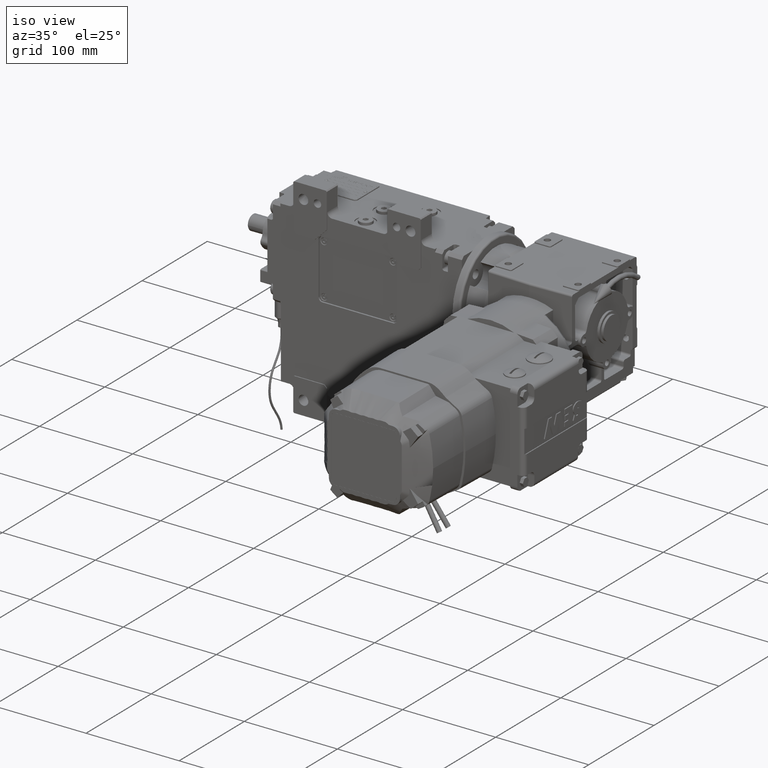
[diagram: clean part render]
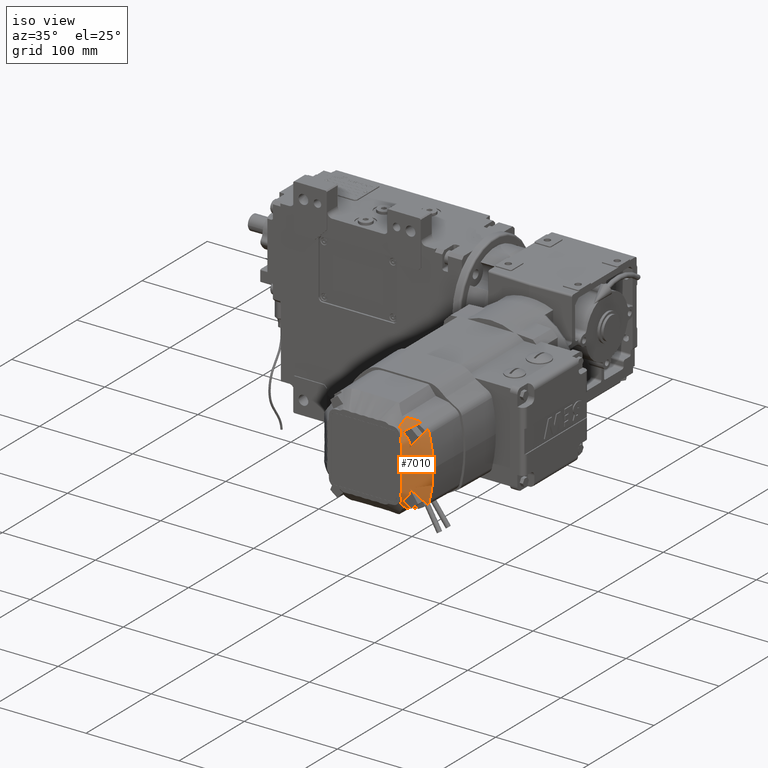
[diagram: same view with one face highlighted and labeled with its STEP entity id]
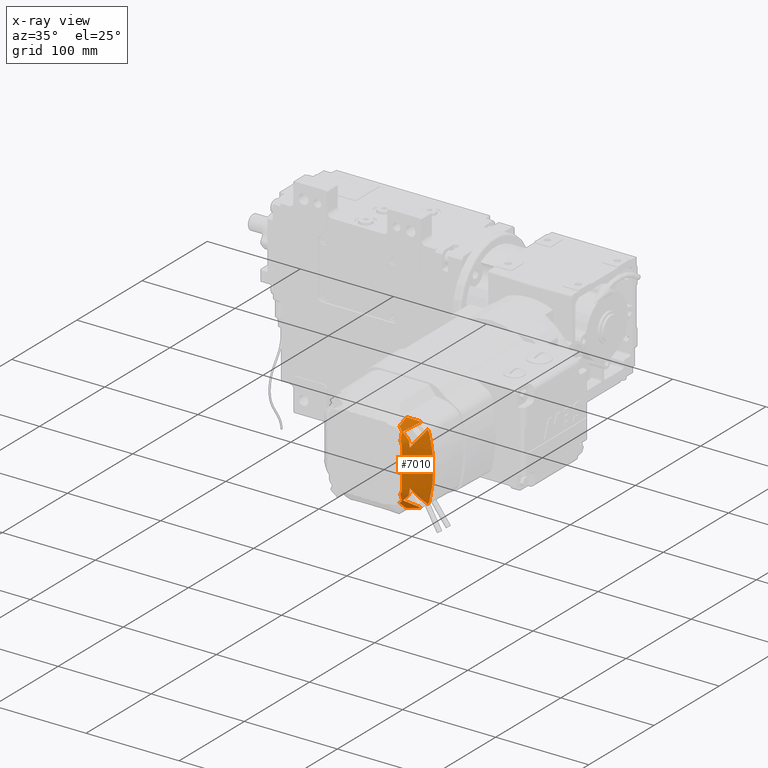
[diagram: x-ray of the same camera — body ghosted, the highlighted face saturated]
A machine part, iso view. The second image highlights one B-rep face of the part: STEP entity #7010.
The next image is the same camera in x-ray: the body ghosted, the highlighted face saturated — about 0% of this face is hidden behind the body in this view.
In plain terms, the highlighted face is a freeform B-spline surface patch.
Its self-contained STEP definition (entity closure, byte-faithful):
#94 = EDGE_CURVE ( 'NONE', #2971, #12641, #502, .T. ) ;
#161 = CARTESIAN_POINT ( 'NONE',  ( 289.1999733276069833, -63.31103153081279800, 23.00000000000533618 ) ) ;
#286 = CARTESIAN_POINT ( 'NONE',  ( 303.5615474305978410, -38.39784350324058693, 50.46808215005970766 ) ) ;
#435 = CARTESIAN_POINT ( 'NONE',  ( 295.0968241376920673, -51.79480636778551883, 51.31067081758151716 ) ) ;
#462 = CARTESIAN_POINT ( 'NONE',  ( 304.3062078937937827, -40.09027070847908902, 45.31259852114459363 ) ) ;
#483 = CARTESIAN_POINT ( 'NONE',  ( 304.3062078937959996, -34.56751278017119944, -7.829533880518782851 ) ) ;
#502 = B_SPLINE_CURVE_WITH_KNOTS ( 'NONE', 3,
 ( #1742, #17195, #92493, #44112, #49567, #34151, #9744, #84504, #69050, #101480, #81993, #68541, #33625, #58063, #9220, #1223, #28164, #66025, #98457, #17724, #60574, #68012, #100442, #19703, #20228, #12236, #77038, #4248, #36632, #28677, #61093, #85560, #12759 ),
 .UNSPECIFIED., .F., .F.,
 ( 4, 2, 2, 2, 1, 1, 1, 1, 1, 2, 2, 2, 2, 1, 1, 1, 1, 2, 2, 2, 4 ),
 ( 0.000000000000000000, 0.2500000000004886092, 0.3750000000007350787, 0.4375000000008602563, 0.4687500000009228174, 0.4843750000009551249, 0.4921875000009708900, 0.4960937500009808265, 0.4980468750009841572, 0.4990234375009858225, 0.5000000000009874324, 0.6250000000008311130, 0.6875000000007527312, 0.7187500000007149836, 0.7343750000006976641, 0.7421875000006902257, 0.7460937500006878942, 0.7480468750006854517, 0.7500000000006828982, 0.8750000000003413936, 1.000000000000000000 ),
 .UNSPECIFIED. ) ;
#819 = CARTESIAN_POINT ( 'NONE',  ( 304.1307147711748371, -38.49902489915837833, 49.11680710119477311 ) ) ;
#1011 = CARTESIAN_POINT ( 'NONE',  ( 304.3000000000000114, -34.57080311293189823, -7.835576022284726605 ) ) ;
#1070 = CARTESIAN_POINT ( 'NONE',  ( 291.1902043613964111, -55.66420864879980712, -10.83576475070871759 ) ) ;
#1223 = CARTESIAN_POINT ( 'NONE',  ( 290.8868109802641015, -42.77309297967380530, 66.21023653416104082 ) ) ;
#1337 = CARTESIAN_POINT ( 'NONE',  ( 303.2379970489743641, -38.34460225390628096, 51.17749269565764081 ) ) ;
#1522 = CARTESIAN_POINT ( 'NONE',  ( 289.1999999999999886, -38.39940691242879467, -24.94270102942712342 ) ) ;
#1742 = CARTESIAN_POINT ( 'NONE',  ( 292.7600284536910067, -37.15410446227579655, 67.26914908011805494 ) ) ;
#1750 = CARTESIAN_POINT ( 'NONE',  ( 304.2999999999977945, -40.14999999999999147, 44.39783867586258026 ) ) ;
#1982 = CARTESIAN_POINT ( 'NONE',  ( 290.8854061944086880, -42.81495139204772471, -20.20208914948741352 ) ) ;
#2053 = CARTESIAN_POINT ( 'NONE',  ( 304.2999999999977945, -32.77754174921840047, -9.700500932323038228 ) ) ;
#2077 = CARTESIAN_POINT ( 'NONE',  ( 295.8325225729303156, -42.73149547334163145, -13.38942105259097914 ) ) ;
#2551 = CARTESIAN_POINT ( 'NONE',  ( 304.3062078937959996, -33.09894711867650585, 55.36651452295996734 ) ) ;
#2665 = CARTESIAN_POINT ( 'NONE',  ( 290.1675909368195221, -48.74728401764934915, 63.60165334211026789 ) ) ;
#2971 = VERTEX_POINT ( 'NONE', #91666 ) ;
#3033 = CARTESIAN_POINT ( 'NONE',  ( 290.5953855234451453, -43.73774342142232996, -20.02781056676783322 ) ) ;
#3072 = CARTESIAN_POINT ( 'NONE',  ( 289.1949354935327392, -38.38012125488079818, 70.96008286943639121 ) ) ;
#3098 = VERTEX_POINT ( 'NONE', #61334 ) ;
#3222 = CARTESIAN_POINT ( 'NONE',  ( 300.1097723926462209, -36.62327703687824965, -12.03466915834717454 ) ) ;
#3445 = ORIENTED_EDGE ( 'NONE', *, *, #47871, .T. ) ;
#3592 = CARTESIAN_POINT ( 'NONE',  ( 300.1999985309918202, -39.66739972121151681, 55.13061081851897427 ) ) ;
#3754 = CARTESIAN_POINT ( 'NONE',  ( 300.1604735275155917, -36.76435145514423652, -11.84115072950612912 ) ) ;
#3794 = ORIENTED_EDGE ( 'NONE', *, *, #82252, .F. ) ;
#3988 = CARTESIAN_POINT ( 'NONE',  ( 289.1999999999977717, -38.46013773776319056, 70.90763807106847594 ) ) ;
#4248 = CARTESIAN_POINT ( 'NONE',  ( 290.0230392472885228, -45.60038150537906887, 65.67602394400476840 ) ) ;
#4343 = EDGE_CURVE ( 'NONE', #96800, #12641, #91297, .T. ) ;
#4609 = CARTESIAN_POINT ( 'NONE',  ( 291.8031220112061987, -40.00174541923687599, -20.73263024977751812 ) ) ;
#4678 = EDGE_CURVE ( 'NONE', #56694, #44793, #77063, .T. ) ;
#6191 = CARTESIAN_POINT ( 'NONE',  ( 291.8020236150927644, -40.00501978903121625, -20.73201333467997642 ) ) ;
#6310 = CARTESIAN_POINT ( 'NONE',  ( 300.8347614123122185, -37.74469758660634966, 55.91342495749238850 ) ) ;
#6495 = CARTESIAN_POINT ( 'NONE',  ( 300.2000094633069125, -45.36020602604810392, -1.230782492797146244 ) ) ;
#6887 = CARTESIAN_POINT ( 'NONE',  ( 304.3062078937937827, -39.63873485957439158, 46.84289327630548883 ) ) ;
#6969 = CARTESIAN_POINT ( 'NONE',  ( 296.6300808226974368, -50.05521637301275462, -2.826150692623082161 ) ) ;
#7010 = ADVANCED_FACE ( 'NONE', ( #50392 ), #86311, .T. ) ;
#7156 = B_SPLINE_CURVE_WITH_KNOTS ( 'NONE', 3,
 ( #44450, #20036, #51878, #26396, #59857, #91762 ),
 .UNSPECIFIED., .F., .F.,
 ( 4, 2, 4 ),
 ( 0.000000000000000000, 0.5000000000000000000, 1.000000000000000000 ),
 .UNSPECIFIED. ) ;
#7381 = CARTESIAN_POINT ( 'NONE',  ( 289.2009582163562413, -57.85820325504585071, -12.81378274069019874 ) ) ;
#7389 = CARTESIAN_POINT ( 'NONE',  ( 294.6977092395989075, -52.23267543532754331, 51.93585726552523596 ) ) ;
#7411 = CARTESIAN_POINT ( 'NONE',  ( 304.3062078937937827, -39.38332786158571253, 47.32965637739269482 ) ) ;
#7490 = CARTESIAN_POINT ( 'NONE',  ( 292.3662846135630389, -54.57324290316314830, -9.278567030728726905 ) ) ;
#7539 = CARTESIAN_POINT ( 'NONE',  ( 300.2000081124691064, -45.30836185482992562, -1.754267918748207089 ) ) ;
#7874 = CARTESIAN_POINT ( 'NONE',  ( 301.8018846672920290, -38.13389050328092367, 53.98515687877639380 ) ) ;
#7908 = CARTESIAN_POINT ( 'NONE',  ( 295.2330798609761473, -51.64257758877096904, 51.09354944619854422 ) ) ;
#7930 = CARTESIAN_POINT ( 'NONE',  ( 289.1949354935349561, -55.53767581221779892, 61.05564664819056730 ) ) ;
#8014 = CARTESIAN_POINT ( 'NONE',  ( 294.5321755095454250, -52.40997252265493955, -6.189020064554338063 ) ) ;
#8442 = CARTESIAN_POINT ( 'NONE',  ( 298.0480011245670084, -48.38896638511589998, 46.44679984706468900 ) ) ;
#8466 = CARTESIAN_POINT ( 'NONE',  ( 289.1949354935337624, -58.76779989824387940, -11.32899378102741927 ) ) ;
#8489 = CARTESIAN_POINT ( 'NONE',  ( 304.3062078937959996, -36.25819340562258475, -5.821624686667234094 ) ) ;
#8639 = B_SPLINE_CURVE_WITH_KNOTS ( 'NONE', 1,
 ( #37893, #69782 ),
 .UNSPECIFIED., .F., .F.,
 ( 2, 2 ),
 ( -0.7603063579092180779, -0.2858018481092370333 ),
 .UNSPECIFIED. ) ;
#8968 = CARTESIAN_POINT ( 'NONE',  ( 299.8505041494240686, -46.17897196207845667, 43.29038275808359515 ) ) ;
#9017 = CARTESIAN_POINT ( 'NONE',  ( 289.1949354935349561, -42.57684996751720519, -22.53733222727151286 ) ) ;
#9019 = ORIENTED_EDGE ( 'NONE', *, *, #87822, .T. ) ;
#9078 = CARTESIAN_POINT ( 'NONE',  ( 289.8124911248113449, -56.89158900603305113, -12.58950236764399833 ) ) ;
#9104 = CARTESIAN_POINT ( 'NONE',  ( 294.5614194087319220, -44.02964894417169717, 60.29831149138701818 ) ) ;
#9220 = CARTESIAN_POINT ( 'NONE',  ( 290.8887827581664851, -42.76682561218736112, 66.21141974736154623 ) ) ;
#9233 = CARTESIAN_POINT ( 'NONE',  ( 304.3000000000000114, -40.14999999999940883, 5.115848221733873658 ) ) ;
#9458 = CARTESIAN_POINT ( 'NONE',  ( 290.8774347868129553, -42.84010708681690716, -20.19734103633905420 ) ) ;
#9529 = CARTESIAN_POINT ( 'NONE',  ( 304.3062078937959996, -40.09048746669768803, 0.6909569498256967757 ) ) ;
#9744 = CARTESIAN_POINT ( 'NONE',  ( 291.2386894495436422, -41.66634852180333581, 66.41922021986889035 ) ) ;
#10067 = CARTESIAN_POINT ( 'NONE',  ( 295.4601093681543489, -43.11536617133111093, -13.65817439827545243 ) ) ;
#10161 = CARTESIAN_POINT ( 'NONE',  ( 300.9450036330160856, -37.79673539539203375, -9.736694995037959544 ) ) ;
#10691 = CARTESIAN_POINT ( 'NONE',  ( 300.7371880292614605, -37.63259135884405282, -10.21204413719227944 ) ) ;
#10727 = CARTESIAN_POINT ( 'NONE',  ( 303.0653283128042403, -38.31588480742349390, -5.558689611841653999 ) ) ;
#11126 = CARTESIAN_POINT ( 'NONE',  ( 292.9128252722675256, -45.77454905252348993, -15.52010061804076280 ) ) ;
#11753 = CARTESIAN_POINT ( 'NONE',  ( 289.2000004202717491, -59.25523688676642564, -9.744698052259289867 ) ) ;
#12236 = CARTESIAN_POINT ( 'NONE',  ( 290.0310687410947139, -45.57331747703562286, 65.68114190278834030 ) ) ;
#12599 = CARTESIAN_POINT ( 'NONE',  ( 291.7949214794847421, -40.02619354233154780, -20.72802496974205511 ) ) ;
#12641 = VERTEX_POINT ( 'NONE', #92844 ) ;
#12759 = CARTESIAN_POINT ( 'NONE',  ( 289.1999999999999886, -48.45844817745589950, 65.13511084727029754 ) ) ;
#13115 = CARTESIAN_POINT ( 'NONE',  ( 291.7727955542898712, -40.09219620164024178, -20.71559917598208500 ) ) ;
#13119 = VERTEX_POINT ( 'NONE', #68765 ) ;
#13841 = CARTESIAN_POINT ( 'NONE',  ( 289.1999364300435786, -62.97090392816800630, 11.97382774782673742 ) ) ;
#14157 = CARTESIAN_POINT ( 'NONE',  ( 292.7600284536910067, -37.15410446227579655, 67.26914908011805494 ) ) ;
#14170 = CARTESIAN_POINT ( 'NONE',  ( 291.7997537144478315, -40.01178670174451923, -20.73073853301890423 ) ) ;
#14284 = CARTESIAN_POINT ( 'NONE',  ( 300.9820524410193912, -37.84015872072863829, 55.59420489616744732 ) ) ;
#14510 = VERTEX_POINT ( 'NONE', #161 ) ;
#14842 = CARTESIAN_POINT ( 'NONE',  ( 294.9634774143276559, -51.94328788915613870, 51.52254522230877143 ) ) ;
#14865 = CARTESIAN_POINT ( 'NONE',  ( 304.2999999999977945, -37.89744761799601491, 49.63640077550498830 ) ) ;
#14945 = CARTESIAN_POINT ( 'NONE',  ( 295.6950087246769385, -51.12317684093174108, -4.351357662682630689 ) ) ;
#15361 = CARTESIAN_POINT ( 'NONE',  ( 294.6170755153304412, -52.31945966013392280, 52.05982358948634925 ) ) ;
#15381 = CARTESIAN_POINT ( 'NONE',  ( 304.2999999999977945, -39.64567766557139095, 46.84844014792607680 ) ) ;
#15461 = CARTESIAN_POINT ( 'NONE',  ( 292.0056386231651686, -54.91285860984960010, -9.763397966359237401 ) ) ;
#15509 = CARTESIAN_POINT ( 'NONE',  ( 300.2000012672618823, -42.53796924520883493, -6.343165696965008316 ) ) ;
#15747 = CARTESIAN_POINT ( 'NONE',  ( 304.2999999999857437, -38.53249759941618180, 48.66987169412819014 ) ) ;
#15887 = CARTESIAN_POINT ( 'NONE',  ( 295.1144143334916521, -51.77517047707980424, 51.28268685767572066 ) ) ;
#15912 = CARTESIAN_POINT ( 'NONE',  ( 304.3000000000000114, -40.14999999999929514, 1.269673050663805425 ) ) ;
#15995 = CARTESIAN_POINT ( 'NONE',  ( 295.6615174208906751, -51.16101333199406298, -4.405404485551014382 ) ) ;
#16406 = CARTESIAN_POINT ( 'NONE',  ( 293.9130861318525945, -53.05764516287371180, 53.11378101726201351 ) ) ;
#16431 = CARTESIAN_POINT ( 'NONE',  ( 304.2999999999977945, -40.14999999999999147, 44.73032694933168329 ) ) ;
#16454 = CARTESIAN_POINT ( 'NONE',  ( 304.3062078937937827, -32.77375890072969611, -9.695710367589372325 ) ) ;
#16750 =( BOUNDED_CURVE ( )  B_SPLINE_CURVE ( 2, ( #97772, #24988, #56331 ),
 .UNSPECIFIED., .F., .F. ) 
 B_SPLINE_CURVE_WITH_KNOTS ( ( 3, 3 ),
 ( 0.000000000000000000, 1.000000000000000000 ),
 .UNSPECIFIED. ) 
 CURVE ( )  GEOMETRIC_REPRESENTATION_ITEM ( )  RATIONAL_B_SPLINE_CURVE ( ( 1.000000000000000000, 0.9553885705670754902, 0.9611256146870623684 ) ) 
 REPRESENTATION_ITEM ( '' )  );
#16785 = CARTESIAN_POINT ( 'NONE',  ( 303.6607899159919270, -38.41479792767823653, 50.24201093045682853 ) ) ;
#16935 = CARTESIAN_POINT ( 'NONE',  ( 298.0231950981161049, -48.41864176682243226, 46.48918042531160211 ) ) ;
#16959 = CARTESIAN_POINT ( 'NONE',  ( 304.3062078937959996, -40.14075336150141027, 12.22272542201335810 ) ) ;
#16981 = CARTESIAN_POINT ( 'NONE',  ( 304.3000000000000114, -40.09816033294569593, 0.6860190084273104505 ) ) ;
#17042 = CARTESIAN_POINT ( 'NONE',  ( 295.7017307260702523, -51.11557994165220009, -4.340507290926674422 ) ) ;
#17070 = CARTESIAN_POINT ( 'NONE',  ( 294.4755514241042533, -44.11979283520874162, 60.36143121592399297 ) ) ;
#17097 = B_SPLINE_CURVE_WITH_KNOTS ( 'NONE', 3,
 ( #74257, #7381, #31805, #49818, #73208, #89707 ),
 .UNSPECIFIED., .F., .F.,
 ( 4, 2, 4 ),
 ( 0.000000000000000000, 0.5000000000000000000, 1.000000000000000000 ),
 .UNSPECIFIED. ) ;
#17195 = CARTESIAN_POINT ( 'NONE',  ( 292.4954573134234010, -37.90412816575819477, 67.12847430126400639 ) ) ;
#17208 = CARTESIAN_POINT ( 'NONE',  ( 304.2999999999977945, -40.14999999999999147, 44.39783867586258026 ) ) ;
#17438 = CARTESIAN_POINT ( 'NONE',  ( 290.7394403227518183, -43.27743029333120717, -20.11476963645283789 ) ) ;
#17506 = CARTESIAN_POINT ( 'NONE',  ( 304.3062078937959996, -39.64277266589161286, -0.8337399072548407064 ) ) ;
#17529 = CARTESIAN_POINT ( 'NONE',  ( 294.5878976260597710, -44.02306093200093784, -14.29370480741247107 ) ) ;
#17623 = CARTESIAN_POINT ( 'NONE',  ( 300.2951790271109758, -37.04772578809390637, -11.39875620743583973 ) ) ;
#17724 = CARTESIAN_POINT ( 'NONE',  ( 290.3588316879694275, -44.48056767718632898, 65.88774972106602945 ) ) ;
#17959 = CARTESIAN_POINT ( 'NONE',  ( 290.2430134635846457, -44.88397438597240807, -19.81113521164053992 ) ) ;
#17978 = CARTESIAN_POINT ( 'NONE',  ( 289.2009707544149819, -57.41652967235039284, 59.33919590282007306 ) ) ;
#18024 = CARTESIAN_POINT ( 'NONE',  ( 304.2999999999977945, -32.77901414065240004, -9.699024939086960728 ) ) ;
#18048 = CARTESIAN_POINT ( 'NONE',  ( 300.1999999999978286, -38.38490855464699081, -10.34583961835236465 ) ) ;
#18116 = CARTESIAN_POINT ( 'NONE',  ( 293.5210048917569452, -45.12786776607689632, 61.06736250619972850 ) ) ;
#18144 = CARTESIAN_POINT ( 'NONE',  ( 299.9101911615873064, -35.30299392285025561, -13.41420594341775008 ) ) ;
#18495 = CARTESIAN_POINT ( 'NONE',  ( 291.7793004541081814, -55.14307485035540424, 56.09240303812389783 ) ) ;
#18522 = CARTESIAN_POINT ( 'NONE',  ( 304.3000000000000114, -33.09066916905989331, 55.38360876962847357 ) ) ;
#18548 = CARTESIAN_POINT ( 'NONE',  ( 304.3000000000000114, -39.64970782477831079, -0.8392956180705568592 ) ) ;
#18990 = CARTESIAN_POINT ( 'NONE',  ( 299.9120944293069897, -34.64544824684140423, 59.89297284527806653 ) ) ;
#19197 = CARTESIAN_POINT ( 'NONE',  ( 299.9428887201472662, -34.65792589400444967, -13.89263115812750371 ) ) ;
#19491 = B_SPLINE_CURVE_WITH_KNOTS ( 'NONE', 3,
 ( #11753, #28201, #29242, #13841, #46249, #78669 ),
 .UNSPECIFIED., .F., .F.,
 ( 4, 2, 4 ),
 ( 0.000000000000000000, 0.5000000000000001110, 1.000000000000000000 ),
 .UNSPECIFIED. ) ;
#19581 = CARTESIAN_POINT ( 'NONE',  ( 289.1999999999977717, -38.36611488472649256, 70.96192219057918749 ) ) ;
#19703 = CARTESIAN_POINT ( 'NONE',  ( 290.0591162204583497, -45.47887395079440154, 65.69900158552016478 ) ) ;
#19729 = CARTESIAN_POINT ( 'NONE',  ( 300.2840018210301878, -37.02668686650412866, -11.43353927155279948 ) ) ;
#19790 = CARTESIAN_POINT ( 'NONE',  ( 304.2999999998332328, -40.15000000020885551, 1.269673050536510361 ) ) ;
#19862 = EDGE_LOOP ( 'NONE', ( #83317, #3445, #31477, #3794, #58787, #92892, #76371, #26380, #9019, #43024, #64800, #101212, #81635, #22436, #76566, #40236, #53376, #29813, #94403, #72181, #86679, #79006, #76348 ) ) ;
#20036 = CARTESIAN_POINT ( 'NONE',  ( 289.2000252465325616, -63.31103062456489283, 28.51309692598152168 ) ) ;
#20048 = CARTESIAN_POINT ( 'NONE',  ( 300.2000000001088438, -45.73390333403850860, 42.65467677800157986 ) ) ;
#20228 = CARTESIAN_POINT ( 'NONE',  ( 290.0395111298469715, -45.54487216073211187, 65.68652105902339144 ) ) ;
#21918 = CARTESIAN_POINT ( 'NONE',  ( 300.2003215099345539, -44.81926637057455309, -3.515635623200509929 ) ) ;
#22436 = ORIENTED_EDGE ( 'NONE', *, *, #25962, .T. ) ;
#22843 = CARTESIAN_POINT ( 'NONE',  ( 304.3000000000000114, -40.14999999999949409, 12.22040102736345801 ) ) ;
#22961 = CARTESIAN_POINT ( 'NONE',  ( 300.2001363494718476, -44.50196852364609157, -4.100256979463298812 ) ) ;
#23233 = B_SPLINE_CURVE_WITH_KNOTS ( 'NONE', 1,
 ( #64042, #14157 ),
 .UNSPECIFIED., .F., .F.,
 ( 2, 2 ),
 ( 0.2905897728935810109, 0.7642365262456140007 ),
 .UNSPECIFIED. ) ;
#23338 = CARTESIAN_POINT ( 'NONE',  ( 296.6649976493876579, -50.01540723391084953, 48.76934213920981875 ) ) ;
#23366 = CARTESIAN_POINT ( 'NONE',  ( 304.2999999999977945, -39.92000776455040523, 46.10657273857618321 ) ) ;
#23441 = CARTESIAN_POINT ( 'NONE',  ( 294.4606717022585940, -52.48600364372342852, -6.297622996019978103 ) ) ;
#23462 = EDGE_CURVE ( 'NONE', #23782, #46905, #38850, .T. ) ;
#23486 = CARTESIAN_POINT ( 'NONE',  ( 300.2000026154101988, -43.23516869086739689, -5.620195377885372601 ) ) ;
#23782 = VERTEX_POINT ( 'NONE', #71203 ) ;
#23858 = CARTESIAN_POINT ( 'NONE',  ( 296.3689068829222037, -50.35675098963866958, 49.25680625005635704 ) ) ;
#23880 = CARTESIAN_POINT ( 'NONE',  ( 289.1999999999999886, -53.62682934997140194, 62.15114458604406877 ) ) ;
#23964 = CARTESIAN_POINT ( 'NONE',  ( 300.1999998764389943, -45.73390329719978808, 3.345323199889047139 ) ) ;
#24236 = CARTESIAN_POINT ( 'NONE',  ( 302.2934326074132514, -38.20054093342631063, 53.09675146718827676 ) ) ;
#24408 = CARTESIAN_POINT ( 'NONE',  ( 289.1999999999977717, -39.77490176416959144, 70.14855870650190184 ) ) ;
#24493 = CARTESIAN_POINT ( 'NONE',  ( 296.6115039449057917, -50.07665957544443813, -2.856774697479429914 ) ) ;
#24879 = DIRECTION ( 'NONE',  ( -3.330669073875406907E-15, -0.8660254037844407060, 0.4999999999999963918 ) ) ;
#24918 = CARTESIAN_POINT ( 'NONE',  ( 304.3062078937937827, -37.89212925322979686, 49.63059276952979104 ) ) ;
#24944 = CARTESIAN_POINT ( 'NONE',  ( 289.2015132376257611, -57.82082682358441161, -12.93635274906071508 ) ) ;
#24978 = EDGE_CURVE ( 'NONE', #97682, #28480, #16750, .T. ) ;
#24988 = CARTESIAN_POINT ( 'NONE',  ( 289.2011248228365048, -58.74944550946333521, 57.75341264666376873 ) ) ;
#25003 = CARTESIAN_POINT ( 'NONE',  ( 291.8223627350810716, -55.08329619950028189, -10.00664577129335164 ) ) ;
#25373 = CARTESIAN_POINT ( 'NONE',  ( 300.3927367759497429, -37.26587966282644970, 57.01229342728716176 ) ) ;
#25454 = CARTESIAN_POINT ( 'NONE',  ( 289.1999999999999886, -53.61972096790168507, -16.15524861234941767 ) ) ;
#25512 = CARTESIAN_POINT ( 'NONE',  ( 295.2968810374767941, -51.57123422245896194, -4.991530128170655445 ) ) ;
#25536 = CARTESIAN_POINT ( 'NONE',  ( 291.0985082654548251, -47.72983393666573448, 62.88938434545534051 ) ) ;
#25550 = EDGE_CURVE ( 'NONE', #96510, #53634, #56126, .T. ) ;
#25700 = VERTEX_POINT ( 'NONE', #20048 ) ;
#25962 = EDGE_CURVE ( 'NONE', #53634, #2971, #23233, .T. ) ;
#25974 = CARTESIAN_POINT ( 'NONE',  ( 304.2999999999977945, -33.38263958872749981, -9.093922886809505002 ) ) ;
#26123 = CARTESIAN_POINT ( 'NONE',  ( 302.0650381464391216, -38.16723635144919768, -7.540750391880672865 ) ) ;
#26351 = EDGE_CURVE ( 'NONE', #78299, #77023, #77597, .T. ) ;
#26380 = ORIENTED_EDGE ( 'NONE', *, *, #23462, .T. ) ;
#26396 = CARTESIAN_POINT ( 'NONE',  ( 289.2001606770791113, -61.61554053175632362, 44.96874736968035080 ) ) ;
#26428 = CARTESIAN_POINT ( 'NONE',  ( 291.5930363660709759, -40.63106092970958372, -20.61416098683958964 ) ) ;
#26496 = CARTESIAN_POINT ( 'NONE',  ( 289.1999999999999886, -38.39599499977869357, -24.94467089811412563 ) ) ;
#26595 = CARTESIAN_POINT ( 'NONE',  ( 294.5526330228751135, -44.03886932513021435, 60.30476764161806358 ) ) ;
#26945 = CARTESIAN_POINT ( 'NONE',  ( 290.0950451613216501, -45.37474594315913379, -19.71833785962687813 ) ) ;
#27073 = CARTESIAN_POINT ( 'NONE',  ( 304.2999999999857437, -38.53249759941618180, 48.66987169412819014 ) ) ;
#27117 = CARTESIAN_POINT ( 'NONE',  ( 292.4398738474297375, -46.28213750602583332, 61.87568753375123976 ) ) ;
#27135 = VERTEX_POINT ( 'NONE', #41815 ) ;
#27260 = CARTESIAN_POINT ( 'NONE',  ( 304.2999999999977945, -40.14999999999999147, 40.88415177826161795 ) ) ;
#27503 = CARTESIAN_POINT ( 'NONE',  ( 292.8041722267540194, -54.15506570065340952, 54.68134297421764245 ) ) ;
#27711 = CARTESIAN_POINT ( 'NONE',  ( 302.2978349261699691, -38.20024529267469404, -7.100930473432669032 ) ) ;
#28164 = CARTESIAN_POINT ( 'NONE',  ( 290.7782017262813383, -43.11834486097511387, 66.14505679826932294 ) ) ;
#28187 = CARTESIAN_POINT ( 'NONE',  ( 299.9265658614266954, -35.70001200000587716, -13.06625653672815268 ) ) ;
#28201 = CARTESIAN_POINT ( 'NONE',  ( 289.1998709205837486, -60.60031974272056488, -4.398204468407302059 ) ) ;
#28480 = VERTEX_POINT ( 'NONE', #91785 ) ;
#28521 = CARTESIAN_POINT ( 'NONE',  ( 292.8193739955710271, -37.05482859786149419, -21.28739108479431152 ) ) ;
#28677 = CARTESIAN_POINT ( 'NONE',  ( 289.6386693918350943, -46.91189223159028643, 65.42786979642926326 ) ) ;
#29242 = CARTESIAN_POINT ( 'NONE',  ( 289.1998927570703017, -61.61554529968557148, 1.031252843449889545 ) ) ;
#29813 = ORIENTED_EDGE ( 'NONE', *, *, #46825, .T. ) ;
#30294 = B_SPLINE_CURVE_WITH_KNOTS ( 'NONE', 3,
 ( #66950, #2665, #25536, #27117, #81874, #18116, #74926, #83980, #98857, #17070, #59520, #74405, #26595, #99385, #9104, #89846, #58994, #41485 ),
 .UNSPECIFIED., .F., .F.,
 ( 4, 2, 2, 1, 1, 1, 1, 1, 1, 2, 2, 4 ),
 ( 0.000000000000000000, 0.2499999999998515632, 0.3749999999997806754, 0.4374999999997454814, 0.4687499999997282174, 0.4843749999997165601, 0.4921874999997110645, 0.4960937499997118971, 0.4980468749997153943, 0.4990234374997143396, 0.4999999999997133404, 1.000000000000000000 ),
 .UNSPECIFIED. ) ;
#30394 = CARTESIAN_POINT ( 'NONE',  ( 300.2000222428309826, -45.22433360090269616, -2.257215472273063739 ) ) ;
#30770 = CARTESIAN_POINT ( 'NONE',  ( 295.5561898920493036, -51.27995086783950285, 50.57525449327582123 ) ) ;
#30796 = CARTESIAN_POINT ( 'NONE',  ( 289.2000000001300464, -50.83376879401541260, 63.76371884988837735 ) ) ;
#31315 = CARTESIAN_POINT ( 'NONE',  ( 289.1999999998939757, -46.66840194937291386, 66.16859451891549782 ) ) ;
#31396 = CARTESIAN_POINT ( 'NONE',  ( 293.9312443699375308, -53.03779648845839745, -7.085235916602664830 ) ) ;
#31477 = ORIENTED_EDGE ( 'NONE', *, *, #100042, .T. ) ;
#31805 = CARTESIAN_POINT ( 'NONE',  ( 289.2008995599700256, -58.24021780778678448, -12.23573516177527409 ) ) ;
#31814 = CARTESIAN_POINT ( 'NONE',  ( 300.2000000001088438, -45.73390333403850860, 42.65467677800157986 ) ) ;
#31838 = CARTESIAN_POINT ( 'NONE',  ( 289.1999999999999886, -60.61787461843898228, 50.32841733201436796 ) ) ;
#31910 = CARTESIAN_POINT ( 'NONE',  ( 297.9233386714758467, -48.56135034854311527, -0.6926908018619493124 ) ) ;
#31954 = CARTESIAN_POINT ( 'NONE',  ( 300.1999999999978286, -38.38490855464699081, -10.34583961835236465 ) ) ;
#32326 = CARTESIAN_POINT ( 'NONE',  ( 294.4539427668194662, -52.49305102839168313, 52.30775288610121976 ) ) ;
#32349 = CARTESIAN_POINT ( 'NONE',  ( 304.3062078937959996, -34.82571810362700404, 53.53436377299706095 ) ) ;
#32879 = CARTESIAN_POINT ( 'NONE',  ( 289.1999999999999886, -58.76228221041002087, 57.32182558431056663 ) ) ;
#32908 = CARTESIAN_POINT ( 'NONE',  ( 304.3062078937770139, -38.77875880025269595, -2.295550316102193289 ) ) ;
#33411 = CARTESIAN_POINT ( 'NONE',  ( 304.3062078937937827, -32.77228730666931256, -9.697186157783976412 ) ) ;
#33471 = CARTESIAN_POINT ( 'NONE',  ( 292.3155373880959473, -54.62127643910629615, -9.347151609345889511 ) ) ;
#33625 = CARTESIAN_POINT ( 'NONE',  ( 290.8958131978241681, -42.74448482213119860, 66.21563748704913621 ) ) ;
#33844 = CARTESIAN_POINT ( 'NONE',  ( 300.3264529948392010, -37.16280211971027114, 57.20068322671816219 ) ) ;
#33928 = CARTESIAN_POINT ( 'NONE',  ( 304.3000000000000114, -36.26248472102930265, -5.827512926532510740 ) ) ;
#34045 = CARTESIAN_POINT ( 'NONE',  ( 300.0202698331730176, -36.33133958701124300, -12.41047942744478227 ) ) ;
#34151 = CARTESIAN_POINT ( 'NONE',  ( 291.3242511125490637, -41.40121411353344172, 66.46928881769700581 ) ) ;
#34376 = CARTESIAN_POINT ( 'NONE',  ( 300.4748381192281386, -37.38090566431220196, 56.78860270253320408 ) ) ;
#34461 = CARTESIAN_POINT ( 'NONE',  ( 289.1949354935349561, -38.39787991035781545, -24.94978326382021905 ) ) ;
#34894 = CARTESIAN_POINT ( 'NONE',  ( 300.1999999999978286, -38.38490855464699081, -10.34583961835236465 ) ) ;
#34914 = CARTESIAN_POINT ( 'NONE',  ( 289.1999999999999886, -48.45844817745509658, -19.13511084727472067 ) ) ;
#35107 = CARTESIAN_POINT ( 'NONE',  ( 301.2120938514125328, -37.97985617094555977, -9.145896847997892820 ) ) ;
#35139 = CARTESIAN_POINT ( 'NONE',  ( 302.7933556160351714, -38.27360291176854190, -6.122648895367921007 ) ) ;
#35170 = CARTESIAN_POINT ( 'NONE',  ( 304.2999999998201019, -38.77297255920862540, -2.308913921633450883 ) ) ;
#35467 = CARTESIAN_POINT ( 'NONE',  ( 289.2000000000420528, -49.81705789190199596, 64.35071716291128041 ) ) ;
#35482 = CARTESIAN_POINT ( 'NONE',  ( 304.3000000000000114, -33.09589544258351168, 55.37826320866096808 ) ) ;
#35668 = CARTESIAN_POINT ( 'NONE',  ( 302.9758487499032640, -38.30182302745613043, -5.746221508046793325 ) ) ;
#36001 = CARTESIAN_POINT ( 'NONE',  ( 300.1999985310058605, -45.16574623419381851, 48.57697836771585287 ) ) ;
#36632 = CARTESIAN_POINT ( 'NONE',  ( 289.8112499624663769, -46.31460270356505760, 65.54096035378336182 ) ) ;
#36908 = CARTESIAN_POINT ( 'NONE',  ( 304.2999999999977945, -40.14999999999999147, 44.39783867586258026 ) ) ;
#37000 = CARTESIAN_POINT ( 'NONE',  ( 292.1896832777605368, -38.84942140946743905, -20.94976122525420692 ) ) ;
#37462 = VECTOR ( 'NONE', #24879, 1000.000000000000000 ) ;
#37831 = CARTESIAN_POINT ( 'NONE',  ( 300.2000032894870287, -43.58139224522424371, -5.258053485766327917 ) ) ;
#37893 = CARTESIAN_POINT ( 'NONE',  ( 292.8193739955710271, -37.05482859786149419, -21.28739108479431152 ) ) ;
#37962 = CARTESIAN_POINT ( 'NONE',  ( 304.2999999999836405, -38.77208041573236130, 48.31025322489069396 ) ) ;
#38102 = CARTESIAN_POINT ( 'NONE',  ( 300.1999985309919907, -42.82748090356643189, 52.04154904131821979 ) ) ;
#38703 = CARTESIAN_POINT ( 'NONE',  ( 301.0757180379540046, -37.89671794559688323, 55.39416239533226616 ) ) ;
#38761 = CARTESIAN_POINT ( 'NONE',  ( 289.1949354935359793, -63.65366484884887655, 22.99999999999753086 ) ) ;
#38850 = B_SPLINE_CURVE_WITH_KNOTS ( 'NONE', 3,
 ( #90433, #26123, #27711, #60111, #35139, #35668, #10727, #49503, #58518, #90959, #81926, #99972, #51601 ),
 .UNSPECIFIED., .F., .F.,
 ( 4, 2, 1, 1, 1, 2, 2, 4 ),
 ( 0.000000000000000000, 0.2499999999999974465, 0.3749999999999895639, 0.4374999999999921729, 0.4687499999999934497, 0.4843749999999940603, 0.4999999999999946709, 1.000000000000000000 ),
 .UNSPECIFIED. ) ;
#39291 = CARTESIAN_POINT ( 'NONE',  ( 304.2999999999787519, -38.80226723016361490, 48.27342521225988747 ) ) ;
#39469 = VERTEX_POINT ( 'NONE', #89676 ) ;
#39643 = CARTESIAN_POINT ( 'NONE',  ( 302.7408494255442406, -38.26575367425137841, 52.22834961594717385 ) ) ;
#39786 = CARTESIAN_POINT ( 'NONE',  ( 298.3340232951365465, -48.04560795956894736, 45.95641213942703729 ) ) ;
#39812 = CARTESIAN_POINT ( 'NONE',  ( 304.3000000000000114, -40.14999999999999147, 22.99999999999773692 ) ) ;
#39882 = CARTESIAN_POINT ( 'NONE',  ( 295.5232502175690570, -51.31695257833382584, -4.628244671655549425 ) ) ;
#39929 = CARTESIAN_POINT ( 'NONE',  ( 300.1999972228401248, -40.38385938460441338, -8.488039324951593301 ) ) ;
#40152 = CARTESIAN_POINT ( 'NONE',  ( 303.3305846300228268, -38.35954522332139049, 50.97840978428893521 ) ) ;
#40236 = ORIENTED_EDGE ( 'NONE', *, *, #4343, .F. ) ;
#40262 = CARTESIAN_POINT ( 'NONE',  ( 301.6459745284822134, -38.11282122111587256, 54.26687004413538773 ) ) ;
#40292 = CARTESIAN_POINT ( 'NONE',  ( 295.0909720096799447, -51.80133946995960770, 51.31997806302224774 ) ) ;
#40316 = CARTESIAN_POINT ( 'NONE',  ( 304.2999999999977945, -39.38996426345589441, 47.33529518050509921 ) ) ;
#40400 = CARTESIAN_POINT ( 'NONE',  ( 294.9245082002086065, -51.98744458994811168, -5.583408122447372612 ) ) ;
#40840 = CARTESIAN_POINT ( 'NONE',  ( 304.3062078937959996, -40.14034044143691204, 22.99999999999773692 ) ) ;
#40868 = CARTESIAN_POINT ( 'NONE',  ( 289.1999999999999886, -55.52515331677570742, -15.05515040261601278 ) ) ;
#41346 = CARTESIAN_POINT ( 'NONE',  ( 292.7896305014270979, -54.16909097693726949, 54.70137429815208918 ) ) ;
#41395 = CARTESIAN_POINT ( 'NONE',  ( 289.2000000000160185, -50.83363444371569528, -17.76379641708021495 ) ) ;
#41458 = CARTESIAN_POINT ( 'NONE',  ( 292.2132693678375404, -54.71782799227148786, -9.484998483671876812 ) ) ;
#41485 = CARTESIAN_POINT ( 'NONE',  ( 300.1999999793629854, -38.35563350255921478, 56.32534118463397022 ) ) ;
#41554 = VERTEX_POINT ( 'NONE', #46435 ) ;
#41815 = CARTESIAN_POINT ( 'NONE',  ( 300.1999999793629854, -38.35563350255921478, 56.32534118463397022 ) ) ;
#41912 = CARTESIAN_POINT ( 'NONE',  ( 289.1949354935219958, -46.70412534331680376, -20.15479459732462431 ) ) ;
#41937 = CARTESIAN_POINT ( 'NONE',  ( 294.6839519025937761, -43.92269050068190239, -14.22342595800127363 ) ) ;
#42386 = CARTESIAN_POINT ( 'NONE',  ( 292.7949398279855018, -54.16397131541561549, 54.69406234596819161 ) ) ;
#42438 = CARTESIAN_POINT ( 'NONE',  ( 289.1999999999999886, -38.40281882507889577, -24.94073116074012475 ) ) ;
#42896 = CARTESIAN_POINT ( 'NONE',  ( 291.6552317725207786, -40.44410428775681510, -20.64936324009331869 ) ) ;
#42916 = CARTESIAN_POINT ( 'NONE',  ( 292.8180126519079636, -54.14171114321625566, 54.66226906264157748 ) ) ;
#43024 = ORIENTED_EDGE ( 'NONE', *, *, #4678, .T. ) ;
#43091 = CARTESIAN_POINT ( 'NONE',  ( 300.8467003423011761, -37.72399086588771411, -9.957994420775108324 ) ) ;
#43410 = CARTESIAN_POINT ( 'NONE',  ( 299.7983003185163398, -35.63234830676248777, 59.24823766022871041 ) ) ;
#43467 = CARTESIAN_POINT ( 'NONE',  ( 289.1999999999977717, -38.39058417829560454, 70.94779483735030112 ) ) ;
#44112 = CARTESIAN_POINT ( 'NONE',  ( 291.7385931782703778, -40.13542956468844380, 66.70822837864731980 ) ) ;
#44381 = CARTESIAN_POINT ( 'NONE',  ( 304.2999999999857437, -38.53249759941618180, 48.66987169412819014 ) ) ;
#44450 = CARTESIAN_POINT ( 'NONE',  ( 289.1999733276069833, -63.31103153081279800, 23.00000000000533618 ) ) ;
#44793 = VERTEX_POINT ( 'NONE', #1750 ) ;
#45002 = CARTESIAN_POINT ( 'NONE',  ( 292.5280742760472208, -37.87735138669182078, -21.13282834328429516 ) ) ;
#45956 = CARTESIAN_POINT ( 'NONE',  ( 304.2999999999968850, -39.38996426345687496, 47.33529518050592344 ) ) ;
#46249 = CARTESIAN_POINT ( 'NONE',  ( 289.1999582665303024, -63.31103179370506240, 17.48690330943455606 ) ) ;
#46435 = CARTESIAN_POINT ( 'NONE',  ( 289.2000000000049909, -49.81705789190171885, -18.35071716291741950 ) ) ;
#46825 = EDGE_CURVE ( 'NONE', #27135, #25700, #52516, .T. ) ;
#46905 = VERTEX_POINT ( 'NONE', #85952 ) ;
#47208 = EDGE_CURVE ( 'NONE', #44793, #101369, #76410, .T. ) ;
#47230 = CARTESIAN_POINT ( 'NONE',  ( 294.8579730497441460, -52.05907128159859809, 51.68789349269204791 ) ) ;
#47252 = CARTESIAN_POINT ( 'NONE',  ( 289.1949354936649570, -50.83810760740781376, 63.76845712099547825 ) ) ;
#47329 = CARTESIAN_POINT ( 'NONE',  ( 295.8685068522494817, -50.92705278768499255, -4.071262562465545187 ) ) ;
#47369 = CARTESIAN_POINT ( 'NONE',  ( 289.2000004202740229, -59.25523688676548062, 55.74469805226176788 ) ) ;
#47598 = CARTESIAN_POINT ( 'NONE',  ( 303.1979059137872810, -38.33819184550915082, 51.26290970146555992 ) ) ;
#47766 = CARTESIAN_POINT ( 'NONE',  ( 289.1999999999999886, -56.53326853027517984, 60.34057842009496397 ) ) ;
#47841 = CARTESIAN_POINT ( 'NONE',  ( 294.7559668156970929, -52.17056964229402638, -5.846928327077083765 ) ) ;
#47871 = EDGE_CURVE ( 'NONE', #77023, #60101, #72634, .T. ) ;
#47884 = CARTESIAN_POINT ( 'NONE',  ( 300.1999999191237976, -41.82640833805134406, -7.061201008561613257 ) ) ;
#48262 = CARTESIAN_POINT ( 'NONE',  ( 294.4402739313238158, -52.50751962547329299, 52.32841437955967479 ) ) ;
#48286 = CARTESIAN_POINT ( 'NONE',  ( 289.1949354935359793, -62.64894659560271606, 6.564677479050526010 ) ) ;
#48355 = B_SPLINE_CURVE_WITH_KNOTS ( 'NONE', 3,
 ( #18048, #49382, #90319, #58922, #82852, #2077, #10067, #49903, #98266, #41937, #66354, #74339, #17529, #58399, #59448, #11126, #91893, #98796 ),
 .UNSPECIFIED., .F., .F.,
 ( 4, 2, 2, 1, 1, 1, 1, 1, 1, 2, 2, 4 ),
 ( 0.000000000000000000, 0.2499999999994899635, 0.3749999999992382205, 0.4374999999991099342, 0.4687499999990484278, 0.4843749999990180632, 0.4921874999990058508, 0.4960937499989975796, 0.4980468749989938049, 0.4990234374989918620, 0.4999999999989899191, 1.000000000000000000 ),
 .UNSPECIFIED. ) ;
#48780 = CARTESIAN_POINT ( 'NONE',  ( 293.5028587792120334, -53.47026920588722732, 53.70302528837691369 ) ) ;
#48804 = CARTESIAN_POINT ( 'NONE',  ( 289.1999999999999886, -60.61787461843831437, -4.328417332018802632 ) ) ;
#48828 = CARTESIAN_POINT ( 'NONE',  ( 289.1949354935349561, -53.62469654809820696, -16.15989521407191987 ) ) ;
#49303 = CARTESIAN_POINT ( 'NONE',  ( 295.7630156147438925, -51.04627198335934679, 50.24153683808503956 ) ) ;
#49329 = CARTESIAN_POINT ( 'NONE',  ( 304.3062078936069952, -40.14219848843580962, 1.274411973996830705 ) ) ;
#49358 = CARTESIAN_POINT ( 'NONE',  ( 289.1999999999977717, -58.76154024207147586, -11.32496532355740904 ) ) ;
#49382 = CARTESIAN_POINT ( 'NONE',  ( 299.3501065175988742, -39.19889603987900273, -10.91578740368690070 ) ) ;
#49415 = CARTESIAN_POINT ( 'NONE',  ( 289.2008975613608186, -57.41654774065810329, -13.33922170703762156 ) ) ;
#49503 = CARTESIAN_POINT ( 'NONE',  ( 303.1032980531832095, -38.32190136411847448, -5.478464134884303505 ) ) ;
#49544 = VECTOR ( 'NONE', #78888, 1000.000000000000000 ) ;
#49567 = CARTESIAN_POINT ( 'NONE',  ( 291.5764473517967303, -40.62577822449380704, 66.61569367699586053 ) ) ;
#49791 = CARTESIAN_POINT ( 'NONE',  ( 300.3345280145963443, -37.17591461820842369, 57.17730730348434776 ) ) ;
#49818 = CARTESIAN_POINT ( 'NONE',  ( 289.2005871501819456, -58.85822830427001406, -11.02082456808897248 ) ) ;
#49827 = CARTESIAN_POINT ( 'NONE',  ( 293.0420709029822888, -53.92452531914370439, 54.35199701127367433 ) ) ;
#49878 = CARTESIAN_POINT ( 'NONE',  ( 304.3062072716750208, -39.91492297128140621, -0.09323601593211328087 ) ) ;
#49903 = CARTESIAN_POINT ( 'NONE',  ( 295.0183981123075228, -43.57399710006427540, -13.97928049567133968 ) ) ;
#50058 = CARTESIAN_POINT ( 'NONE',  ( 304.2999999998332328, -39.92228139989565960, -0.09851389290746162541 ) ) ;
#50322 = CARTESIAN_POINT ( 'NONE',  ( 290.8681465467228691, -42.86943296255585523, -20.19180557700942913 ) ) ;
#50343 = CARTESIAN_POINT ( 'NONE',  ( 292.8502497686195056, -54.11057750817834489, 54.61779934219919141 ) ) ;
#50366 = CARTESIAN_POINT ( 'NONE',  ( 304.3000000000000114, -33.10112171610710163, 55.37291764769337021 ) ) ;
#50392 = FACE_OUTER_BOUND ( 'NONE', #19862, .T. ) ;
#50512 = CARTESIAN_POINT ( 'NONE',  ( 300.3013114409985747, -37.05906394048285790, -11.37983108942537314 ) ) ;
#50826 = CARTESIAN_POINT ( 'NONE',  ( 300.3187579744022742, -37.15019469644278161, 57.22304508942990253 ) ) ;
#50909 = CARTESIAN_POINT ( 'NONE',  ( 289.1949354935349561, -38.40129247351900688, -24.94781322948852420 ) ) ;
#51038 = CARTESIAN_POINT ( 'NONE',  ( 299.9764677405455018, -36.12366166637144005, -12.64605630172149731 ) ) ;
#51372 = CARTESIAN_POINT ( 'NONE',  ( 289.6733612599835510, -46.79368685630703339, -19.45005998170971040 ) ) ;
#51392 = CARTESIAN_POINT ( 'NONE',  ( 292.9144951862560333, -54.04841780391920025, 54.52900459981277237 ) ) ;
#51566 = CARTESIAN_POINT ( 'NONE',  ( 299.9351474097007895, -35.78846258589123153, -12.98132538792287960 ) ) ;
#51601 = CARTESIAN_POINT ( 'NONE',  ( 304.2999999999879606, -38.53249712031650631, -2.669878082749030490 ) ) ;
#51878 = CARTESIAN_POINT ( 'NONE',  ( 289.2000703900480971, -62.97090156082532530, 34.02617257856293520 ) ) ;
#52516 = B_SPLINE_CURVE_WITH_KNOTS ( 'NONE', 3,
 ( #94971, #94446, #3592, #77965, #38102, #84901, #102925, #52992, #36001, #70505, #78505, #61491, #69982 ),
 .UNSPECIFIED., .F., .F.,
 ( 4, 1, 1, 2, 1, 1, 1, 2, 4 ),
 ( 0.000000000000000000, 0.06939635563589673095, 0.2572830683186995704, 0.4451697810015067813, 0.5128135669137889874, 0.5804573528260749127, 0.6481011387383620592, 0.7157449246506437657, 1.000000000000000000 ),
 .UNSPECIFIED. ) ;
#52954 = CARTESIAN_POINT ( 'NONE',  ( 291.8034431330814300, -40.00078813859233406, -20.73281060543260068 ) ) ;
#52992 = CARTESIAN_POINT ( 'NONE',  ( 300.2004457601506715, -44.78270725724088663, 49.58677109648130710 ) ) ;
#53376 = ORIENTED_EDGE ( 'NONE', *, *, #78322, .T. ) ;
#53634 = VERTEX_POINT ( 'NONE', #89424 ) ;
#54120 = EDGE_CURVE ( 'NONE', #78299, #13119, #17097, .T. ) ;
#54627 = EDGE_CURVE ( 'NONE', #101369, #96510, #102074, .T. ) ;
#54633 = CARTESIAN_POINT ( 'NONE',  ( 300.9974948854400623, -37.84987041409839748, 55.56094862307748627 ) ) ;
#55197 = CARTESIAN_POINT ( 'NONE',  ( 298.6642347783892433, -47.64634365068831556, 45.38614035133406333 ) ) ;
#55222 = CARTESIAN_POINT ( 'NONE',  ( 289.1949354935349561, -62.64894659560310686, 39.43532252094499313 ) ) ;
#55473 = CARTESIAN_POINT ( 'NONE',  ( 304.3000000000000114, -40.14999999999929514, 1.602161323950232585 ) ) ;
#55720 = CARTESIAN_POINT ( 'NONE',  ( 296.0170160152499079, -50.75820326660436166, 49.83013683372351466 ) ) ;
#55743 = CARTESIAN_POINT ( 'NONE',  ( 289.1949359537307487, -59.13265970577419495, -10.26108842683191824 ) ) ;
#55819 = CARTESIAN_POINT ( 'NONE',  ( 293.2076281978587531, -53.76563599397732673, -8.124256814247861058 ) ) ;
#56126 = B_SPLINE_CURVE_WITH_KNOTS ( 'NONE', 3,
 ( #7874, #40262, #72657, #105087, #63130, #38703, #97647, #54633, #14284, #79099, #6310, #71091, #57246, #34376, #25373, #74233, #49791, #33844, #98162, #50826, #59333, #43410, #18990 ),
 .UNSPECIFIED., .F., .F.,
 ( 4, 2, 1, 1, 1, 2, 2, 2, 1, 1, 1, 1, 2, 2, 4 ),
 ( 0.000000000000000000, 0.1250000000000402733, 0.1875000000000591749, 0.2187500000000746903, 0.2343750000000780764, 0.2421875000000734413, 0.2500000000000688338, 0.3750000000000394684, 0.4375000000000197065, 0.4687500000000104916, 0.4843750000000087153, 0.4921875000000106026, 0.4960937500000088263, 0.5000000000000071054, 1.000000000000000000 ),
 .UNSPECIFIED. ) ;
#56265 = CARTESIAN_POINT ( 'NONE',  ( 289.1999999999999886, -63.64578441493750915, 22.99999999999753086 ) ) ;
#56331 = CARTESIAN_POINT ( 'NONE',  ( 289.2009707544149819, -57.41652967235039284, 59.33919590282007306 ) ) ;
#56694 = VERTEX_POINT ( 'NONE', #55473 ) ;
#56722 = B_SPLINE_CURVE_WITH_KNOTS ( 'NONE', 3,
 ( #34914, #75812, #51372, #26945, #17959, #57779, #3033, #17438, #76345, #82238, #50322, #9458, #66265, #74763, #1982, #66790, #67321, #99221, #26428, #42896, #60418, #77398, #13115, #85388, #12599, #14170, #6191, #4609, #61456, #62486, #52954, #37000, #45002, #28521 ),
 .UNSPECIFIED., .F., .F.,
 ( 4, 2, 2, 1, 1, 1, 1, 1, 1, 1, 2, 2, 2, 2, 2, 1, 1, 1, 1, 1, 2, 2, 4 ),
 ( 0.000000000000000000, 0.2499999999993656741, 0.3749999999990485389, 0.4374999999988880561, 0.4687499999988059551, 0.4843749999987649324, 0.4921874999987426169, 0.4960937499987315702, 0.4980468749987252974, 0.4990234374987221888, 0.4995117187487222998, 0.4999999999987224664, 0.6249999999989624966, 0.6874999999990846211, 0.7187499999991455724, 0.7343749999991762145, 0.7421874999991917576, 0.7460937499991995292, 0.7480468749992064126, 0.7490234374992043032, 0.7495117187492033040, 0.7499999999992021937, 1.000000000000000000 ),
 .UNSPECIFIED. ) ;
#56758 = CARTESIAN_POINT ( 'NONE',  ( 299.4924302007135566, -46.62774594075088430, 43.93128466214718486 ) ) ;
#56784 = CARTESIAN_POINT ( 'NONE',  ( 289.1949354935359793, -60.62473949812857654, -4.331584917710920912 ) ) ;
#56867 = CARTESIAN_POINT ( 'NONE',  ( 294.5980646120572146, -52.33960744098862961, -6.088484022268452200 ) ) ;
#57246 = CARTESIAN_POINT ( 'NONE',  ( 300.5518077527755167, -37.47206119128231450, 56.59151314201566407 ) ) ;
#57279 = CARTESIAN_POINT ( 'NONE',  ( 298.9424455418050570, -47.30596513986539264, 44.89996859964182363 ) ) ;
#57305 = CARTESIAN_POINT ( 'NONE',  ( 289.1949354934300231, -46.67183882409689488, 66.17347329306998915 ) ) ;
#57328 = CARTESIAN_POINT ( 'NONE',  ( 289.1949354935359793, -56.52435577984188342, -14.35746667762341566 ) ) ;
#57385 = CARTESIAN_POINT ( 'NONE',  ( 292.4023760874277400, -54.53903156310408207, -9.229715331726557892 ) ) ;
#57779 = CARTESIAN_POINT ( 'NONE',  ( 290.4760764197041567, -44.12381901390730832, -19.95483594339929923 ) ) ;
#57848 = CARTESIAN_POINT ( 'NONE',  ( 304.3062078937959996, -39.38651885965050070, -1.324566663026480295 ) ) ;
#58063 = CARTESIAN_POINT ( 'NONE',  ( 290.8915953723840744, -42.75788717574815223, 66.21310723936093723 ) ) ;
#58374 = CARTESIAN_POINT ( 'NONE',  ( 304.3062078937937827, -32.77670208885049874, -9.692758787200176585 ) ) ;
#58399 = CARTESIAN_POINT ( 'NONE',  ( 294.5798835219263196, -44.03143943868278853, -14.29957144222562526 ) ) ;
#58448 = CARTESIAN_POINT ( 'NONE',  ( 289.1999999999999886, -48.45844817745509658, -19.13511084727472067 ) ) ;
#58489 = CARTESIAN_POINT ( 'NONE',  ( 299.9450399517382380, -35.87771544216779063, -12.89374809170174885 ) ) ;
#58518 = CARTESIAN_POINT ( 'NONE',  ( 303.1285270703867241, -38.32591024848657923, -5.425012700132704424 ) ) ;
#58787 = ORIENTED_EDGE ( 'NONE', *, *, #104188, .T. ) ;
#58892 = CARTESIAN_POINT ( 'NONE',  ( 304.2999999999809688, -38.78485769135831163, -2.301245956971786910 ) ) ;
#58922 = CARTESIAN_POINT ( 'NONE',  ( 297.0491141498125103, -41.48880564290632833, -12.51937368365350878 ) ) ;
#58994 = CARTESIAN_POINT ( 'NONE',  ( 298.5136179922549218, -39.96718467490092763, 57.45375101684455643 ) ) ;
#59020 = CARTESIAN_POINT ( 'NONE',  ( 300.6504970235006908, -37.54540515517432198, -10.42403461994087266 ) ) ;
#59333 = CARTESIAN_POINT ( 'NONE',  ( 299.9328544684211124, -36.51009073313524311, 58.35051397916263483 ) ) ;
#59448 = CARTESIAN_POINT ( 'NONE',  ( 294.5751077173789554, -44.03643281598722581, -14.30306781246618542 ) ) ;
#59520 = CARTESIAN_POINT ( 'NONE',  ( 294.5205382137461925, -44.07255587984984402, 60.32835522246904958 ) ) ;
#59857 = CARTESIAN_POINT ( 'NONE',  ( 289.2002058205945900, -60.60031377245299922, 50.39820447730221531 ) ) ;
#60077 = CARTESIAN_POINT ( 'NONE',  ( 299.9123696114044151, -35.48968323353643939, -13.25882960378315190 ) ) ;
#60101 = VERTEX_POINT ( 'NONE', #34894 ) ;
#60111 = CARTESIAN_POINT ( 'NONE',  ( 302.6308746303209887, -38.24923623214049684, -6.447664447506399554 ) ) ;
#60418 = CARTESIAN_POINT ( 'NONE',  ( 291.7271354478082799, -40.22861444156144728, -20.68992508261043284 ) ) ;
#60574 = CARTESIAN_POINT ( 'NONE',  ( 290.2368341653632342, -44.88469397456415777, 65.81135256632386188 ) ) ;
#60604 = CARTESIAN_POINT ( 'NONE',  ( 300.2674219448817894, -36.99495253613259393, -11.48554269641786796 ) ) ;
#61093 = CARTESIAN_POINT ( 'NONE',  ( 289.3654090855562799, -47.86805930005071730, 65.24688202261773995 ) ) ;
#61334 = CARTESIAN_POINT ( 'NONE',  ( 299.9843920935350070, -34.38630791285571320, -14.05513274556199832 ) ) ;
#61456 = CARTESIAN_POINT ( 'NONE',  ( 291.8035849193528293, -40.00036548941206149, -20.73289025312200451 ) ) ;
#61491 = CARTESIAN_POINT ( 'NONE',  ( 300.1999985724104931, -45.61669869261177013, 44.26775848584408379 ) ) ;
#62273 = CARTESIAN_POINT ( 'NONE',  ( 300.1999998764389943, -45.73390329719978808, 3.345323199889047139 ) ) ;
#62486 = CARTESIAN_POINT ( 'NONE',  ( 291.8038917841071793, -39.99945072941007140, -20.73306261349190294 ) ) ;
#63130 = CARTESIAN_POINT ( 'NONE',  ( 301.1883806410763782, -37.95694594149957624, 55.15909563499953805 ) ) ;
#63187 = CARTESIAN_POINT ( 'NONE',  ( 304.2999999999977945, -40.09794396871568978, 45.31753371114738371 ) ) ;
#63685 = CARTESIAN_POINT ( 'NONE',  ( 298.1675094887125397, -48.24577462535367545, 46.24229716709761107 ) ) ;
#63710 = CARTESIAN_POINT ( 'NONE',  ( 304.3000000000000114, -34.82888197878269665, 53.54053896289286030 ) ) ;
#63783 = CARTESIAN_POINT ( 'NONE',  ( 290.3862715373122683, -56.38782998917726985, -11.86905504690303204 ) ) ;
#64042 = CARTESIAN_POINT ( 'NONE',  ( 299.9120944293069897, -34.64544824684140423, 59.89297284527806653 ) ) ;
#64211 = CARTESIAN_POINT ( 'NONE',  ( 294.4744303498872569, -52.47134884568164637, 52.27676086877024630 ) ) ;
#64237 = CARTESIAN_POINT ( 'NONE',  ( 289.2016471116260163, -57.82896777223290030, 58.92388404975496741 ) ) ;
#64317 = CARTESIAN_POINT ( 'NONE',  ( 295.7059635486590423, -51.11079551501595830, -4.333674198618512108 ) ) ;
#64729 = CARTESIAN_POINT ( 'NONE',  ( 295.6869825947443928, -51.13225359598952480, 50.36432824654976770 ) ) ;
#64757 = CARTESIAN_POINT ( 'NONE',  ( 289.1949354935327392, -42.52723183616979696, 68.56602824862508783 ) ) ;
#64800 = ORIENTED_EDGE ( 'NONE', *, *, #47208, .T. ) ;
#65279 = CARTESIAN_POINT ( 'NONE',  ( 289.2000004600407692, -59.12629509854222221, -10.25722233172052178 ) ) ;
#65303 = CARTESIAN_POINT ( 'NONE',  ( 304.3000000000000114, -39.92228139969800083, -0.09851389276568922604 ) ) ;
#65363 = CARTESIAN_POINT ( 'NONE',  ( 294.5677150173613654, -52.37205548192237359, -6.134848421672723262 ) ) ;
#65786 = CARTESIAN_POINT ( 'NONE',  ( 304.3062078937959996, -33.09372372642690863, 55.37185937757787002 ) ) ;
#65813 = CARTESIAN_POINT ( 'NONE',  ( 304.3062078937937827, -33.38000064354651641, -9.087739974339564597 ) ) ;
#65872 = CARTESIAN_POINT ( 'NONE',  ( 294.1890186838165846, -52.77122965205683158, -6.704810263677173587 ) ) ;
#66025 = CARTESIAN_POINT ( 'NONE',  ( 290.6521357239340091, -43.52252845900794398, 66.06876258046924022 ) ) ;
#66265 = CARTESIAN_POINT ( 'NONE',  ( 290.8820836537767605, -42.82543507226984758, -20.20011038696025807 ) ) ;
#66282 = CARTESIAN_POINT ( 'NONE',  ( 293.1498533042776558, -53.81905156964776182, 54.20128538203564261 ) ) ;
#66329 = CARTESIAN_POINT ( 'NONE',  ( 289.1949354935349561, -39.80372836680559345, -24.13820276155302480 ) ) ;
#66354 = CARTESIAN_POINT ( 'NONE',  ( 294.6279473036557874, -43.98119951651263193, -14.26439352880094269 ) ) ;
#66447 = CARTESIAN_POINT ( 'NONE',  ( 300.9283622542105263, -37.78493960641788618, -9.773783349463771586 ) ) ;
#66790 = CARTESIAN_POINT ( 'NONE',  ( 290.8856927672199504, -42.81404718001952858, -20.20225981647394775 ) ) ;
#66861 = CARTESIAN_POINT ( 'NONE',  ( 304.3062078937959996, -37.82799263270359091, -3.726028013377680193 ) ) ;
#66950 = CARTESIAN_POINT ( 'NONE',  ( 289.2000000000420528, -49.81705789190199596, 64.35071716291128041 ) ) ;
#66977 = CARTESIAN_POINT ( 'NONE',  ( 299.9843920935350070, -34.38630791285571320, -14.05513274556199832 ) ) ;
#67321 = CARTESIAN_POINT ( 'NONE',  ( 291.1537227275000532, -41.96847446822704342, -20.36185673453303124 ) ) ;
#67362 = CARTESIAN_POINT ( 'NONE',  ( 304.3000000000000114, -33.10634798963069159, 55.36757208672586472 ) ) ;
#67510 = CARTESIAN_POINT ( 'NONE',  ( 301.8214675811810253, -38.13389050327769780, -7.985156878812446735 ) ) ;
#67886 = CARTESIAN_POINT ( 'NONE',  ( 289.1949354935327392, -38.40459524963549143, 70.94595436370299524 ) ) ;
#68012 = CARTESIAN_POINT ( 'NONE',  ( 290.1741199027576386, -45.09329163883788993, 65.77191354462604522 ) ) ;
#68041 = CARTESIAN_POINT ( 'NONE',  ( 300.9539726723078843, -37.80297964889600593, -9.716787416417126622 ) ) ;
#68172 = B_SPLINE_CURVE_WITH_KNOTS ( 'NONE', 3,
 ( #66977, #19197, #74950, #18144, #60077, #28187, #51566, #76542, #58489, #51038, #34045, #3222, #3754, #92517, #60604, #19729, #17623, #50512, #84004, #100468, #59020, #10691, #43091, #82944, #66447, #10161, #68041, #35107, #75484, #67510 ),
 .UNSPECIFIED., .F., .F.,
 ( 4, 2, 1, 1, 2, 2, 2, 1, 1, 1, 2, 2, 2, 1, 1, 1, 2, 2, 4 ),
 ( 0.000000000000000000, 0.1250000000000314193, 0.1875000000000460743, 0.2187500000000541789, 0.2343750000000588973, 0.2500000000000636158, 0.3750000000000940359, 0.4375000000001111888, 0.4687500000001224576, 0.4843750000001273981, 0.4921875000001265654, 0.5000000000001256772, 0.6250000000001266764, 0.6875000000001236788, 0.7187500000001183498, 0.7343750000001193490, 0.7421875000001197931, 0.7500000000001203482, 1.000000000000000000 ),
 .UNSPECIFIED. ) ;
#68541 = CARTESIAN_POINT ( 'NONE',  ( 290.9056471193150060, -42.71324974625049720, 66.22153446952269462 ) ) ;
#68765 = CARTESIAN_POINT ( 'NONE',  ( 289.2000004202717491, -59.25523688676642564, -9.744698052259289867 ) ) ;
#69050 = CARTESIAN_POINT ( 'NONE',  ( 291.0422480517340773, -42.28111974447740806, 66.30312638772129219 ) ) ;
#69323 = CARTESIAN_POINT ( 'NONE',  ( 304.2999999999968850, -39.92000776455148525, 46.10657273857696481 ) ) ;
#69368 = EDGE_CURVE ( 'NONE', #14510, #97682, #7156, .T. ) ;
#69782 = CARTESIAN_POINT ( 'NONE',  ( 299.9843920935350070, -34.38630791285571320, -14.05513274556199832 ) ) ;
#69982 = CARTESIAN_POINT ( 'NONE',  ( 300.2000000001088438, -45.73390333403850860, 42.65467677800157986 ) ) ;
#70505 = CARTESIAN_POINT ( 'NONE',  ( 300.1999986559183071, -45.30250581327678105, 47.86014734661915782 ) ) ;
#71091 = CARTESIAN_POINT ( 'NONE',  ( 300.7145430913299720, -37.64396791360945116, 56.19029251350276155 ) ) ;
#71126 = CARTESIAN_POINT ( 'NONE',  ( 295.7119774384033803, -51.10400393060663049, 50.32398467542784459 ) ) ;
#71153 = CARTESIAN_POINT ( 'NONE',  ( 304.3000000000000114, -40.14999999999999147, 33.77959897263200872 ) ) ;
#71203 = CARTESIAN_POINT ( 'NONE',  ( 301.8214675811810253, -38.13389050327769780, -7.985156878812446735 ) ) ;
#71280 = CARTESIAN_POINT ( 'NONE',  ( 300.2000711338888550, -45.14142181570179702, -2.577805926379846735 ) ) ;
#71681 = CARTESIAN_POINT ( 'NONE',  ( 304.3062078937959996, -36.41702909655489151, 51.61638155244280313 ) ) ;
#71756 = CARTESIAN_POINT ( 'NONE',  ( 292.4104336258919261, -54.53138816465461503, -9.218800662599097251 ) ) ;
#71890 = CARTESIAN_POINT ( 'NONE',  ( 300.1999998764389943, -45.73390329719978808, 3.345323199889047139 ) ) ;
#72181 = ORIENTED_EDGE ( 'NONE', *, *, #24978, .F. ) ;
#72199 = CARTESIAN_POINT ( 'NONE',  ( 289.1999999999977717, -42.52465069243460505, 68.56099042256417420 ) ) ;
#72274 = CARTESIAN_POINT ( 'NONE',  ( 295.6849372099915740, -51.13455785640288553, -4.367613391220708685 ) ) ;
#72320 = CARTESIAN_POINT ( 'NONE',  ( 300.1999954253087708, -39.39617485322907697, -9.426905101135565346 ) ) ;
#72550 = CARTESIAN_POINT ( 'NONE',  ( 303.1710872140381525, -38.33391693227543584, 51.31987588723623617 ) ) ;
#72634 = B_SPLINE_CURVE_WITH_KNOTS ( 'NONE', 3,
 ( #62273, #95757, #103190, #6495, #94715, #7539, #30394, #71280, #21918, #22961, #103713, #87796, #80327, #37831, #23486, #15509, #47884, #39929, #72320, #31954 ),
 .UNSPECIFIED., .F., .F.,
 ( 4, 1, 2, 2, 2, 2, 2, 2, 1, 2, 4 ),
 ( 0.000000000000000000, 0.2500000000000003886, 0.2812500000000004441, 0.3125000000000004996, 0.3750000000000005551, 0.5000000000000012212, 0.5312500000000015543, 0.5625000000000019984, 0.6250000000000017764, 0.7500000000000014433, 1.000000000000000000 ),
 .UNSPECIFIED. ) ;
#72657 = CARTESIAN_POINT ( 'NONE',  ( 301.4984335285256520, -38.07665692418002834, 54.54466668025515474 ) ) ;
#72692 = CARTESIAN_POINT ( 'NONE',  ( 297.6298469614631017, -48.88876829778182298, 47.16057554890361558 ) ) ;
#72717 = CARTESIAN_POINT ( 'NONE',  ( 304.3000000000000114, -36.42124189664200173, 51.62236178210889648 ) ) ;
#72795 = CARTESIAN_POINT ( 'NONE',  ( 294.6025158355519693, -52.33484324117215891, -6.081676051641607295 ) ) ;
#73208 = CARTESIAN_POINT ( 'NONE',  ( 289.2003336855057114, -59.09416932829340396, -10.38440753501420488 ) ) ;
#73244 = CARTESIAN_POINT ( 'NONE',  ( 304.2999999999977945, -40.14999999999999147, 40.88415177826161795 ) ) ;
#73268 = CARTESIAN_POINT ( 'NONE',  ( 304.2999999999977945, -32.77606935778429431, -9.701976925559115728 ) ) ;
#73724 = CARTESIAN_POINT ( 'NONE',  ( 289.1999999999977717, -58.53617446956149450, -13.31673285970791376 ) ) ;
#73769 = CARTESIAN_POINT ( 'NONE',  ( 289.1949354935327392, -39.77694180142849234, 70.15371728432818088 ) ) ;
#73797 = CARTESIAN_POINT ( 'NONE',  ( 304.3000000000000114, -37.83333729919280586, -3.731796832130360286 ) ) ;
#73850 = CARTESIAN_POINT ( 'NONE',  ( 292.8225581248368599, -54.14029562804136475, -8.660315684048343954 ) ) ;
#74116 = CARTESIAN_POINT ( 'NONE',  ( 303.4083024405419451, -38.37232545467232825, 50.80814180129843294 ) ) ;
#74233 = CARTESIAN_POINT ( 'NONE',  ( 300.3536102449423879, -37.20625106551793948, 57.12256579030399450 ) ) ;
#74257 = CARTESIAN_POINT ( 'NONE',  ( 289.2008975613608186, -57.41654774065810329, -13.33922170703762156 ) ) ;
#74267 = CARTESIAN_POINT ( 'NONE',  ( 290.5846482142785021, -56.22912976736277102, 57.64341234959606908 ) ) ;
#74290 = CARTESIAN_POINT ( 'NONE',  ( 289.1999999999977717, -38.40281882508008948, 70.94073116073579399 ) ) ;
#74313 = CARTESIAN_POINT ( 'NONE',  ( 304.2999999999977945, -32.77459696635029474, -9.703452918795193227 ) ) ;
#74339 = CARTESIAN_POINT ( 'NONE',  ( 294.5999167651883113, -44.01049618340525171, -14.28490697420759226 ) ) ;
#74405 = CARTESIAN_POINT ( 'NONE',  ( 294.5430081055838514, -44.04897035027835273, 60.31184043470572931 ) ) ;
#74488 = CARTESIAN_POINT ( 'NONE',  ( 304.2999999998332328, -39.39315102916084754, -1.330209244440559768 ) ) ;
#74763 = CARTESIAN_POINT ( 'NONE',  ( 290.8840770425296682, -42.81914512306401122, -20.20129759827965543 ) ) ;
#74764 = LINE ( 'NONE', #73724, #37462 ) ;
#74805 = CARTESIAN_POINT ( 'NONE',  ( 289.1949354935327392, -38.39235825225809151, 70.95301861656969322 ) ) ;
#74831 = CARTESIAN_POINT ( 'NONE',  ( 289.1999999999999886, -39.80157546996670703, -24.13315863528332628 ) ) ;
#74926 = CARTESIAN_POINT ( 'NONE',  ( 293.8391555338201897, -44.79035083417104346, 60.83099659864407016 ) ) ;
#74950 = CARTESIAN_POINT ( 'NONE',  ( 299.9191539479365360, -34.92202718226180735, -13.71179014030218113 ) ) ;
#75484 = CARTESIAN_POINT ( 'NONE',  ( 301.4986454936897076, -38.08978699808230317, -8.574066441396032801 ) ) ;
#75812 = CARTESIAN_POINT ( 'NONE',  ( 289.4218666663592217, -47.66839078410095709, -19.28473669139459190 ) ) ;
#75855 = CARTESIAN_POINT ( 'NONE',  ( 289.1999999999977717, -38.37834953151109119, 70.95485851396468036 ) ) ;
#76345 = CARTESIAN_POINT ( 'NONE',  ( 290.8126829336406445, -43.04487765053651316, -20.15868424002667680 ) ) ;
#76348 = ORIENTED_EDGE ( 'NONE', *, *, #54120, .F. ) ;
#76371 = ORIENTED_EDGE ( 'NONE', *, *, #95294, .T. ) ;
#76410 = B_SPLINE_CURVE_WITH_KNOTS ( 'NONE', 3,
 ( #36908, #84240, #77311, #69323, #93788, #45956, #78377, #37962, #44381 ),
 .UNSPECIFIED., .F., .F.,
 ( 4, 1, 1, 1, 2, 4 ),
 ( 0.000000000000000000, 0.1828952914213847758, 0.3657905834209992935, 0.5486858754206108690, 0.7315811674202121750, 1.000000000000000000 ),
 .UNSPECIFIED. ) ;
#76438 = EDGE_CURVE ( 'NONE', #39469, #3098, #8639, .T. ) ;
#76542 = CARTESIAN_POINT ( 'NONE',  ( 299.9414234287994532, -35.84704421313503531, -12.92417369492650359 ) ) ;
#76566 = ORIENTED_EDGE ( 'NONE', *, *, #94, .T. ) ;
#76606 = CARTESIAN_POINT ( 'NONE',  ( 304.2999999999879606, -38.53249712031650631, -2.669878082749030490 ) ) ;
#77023 = VERTEX_POINT ( 'NONE', #71890 ) ;
#77038 = CARTESIAN_POINT ( 'NONE',  ( 290.0254315470236293, -45.59231671551702902, 65.67754904235795266 ) ) ;
#77063 = B_SPLINE_CURVE_WITH_KNOTS ( 'NONE', 3,
 ( #89983, #9233, #98990, #100048, #91038, #27260, #17208 ),
 .UNSPECIFIED., .F., .F.,
 ( 4, 1, 1, 1, 4 ),
 ( 0.2107928216225200269, 0.3561390677880789668, 0.5014853139076269617, 0.6468315600271760113, 0.7921778061902149393 ),
 .UNSPECIFIED. ) ;
#77311 = CARTESIAN_POINT ( 'NONE',  ( 304.2999999999968850, -40.09794396871681954, 45.31753371114811557 ) ) ;
#77398 = CARTESIAN_POINT ( 'NONE',  ( 291.7475384338395088, -40.16762023729621944, -20.70140344848538660 ) ) ;
#77597 = B_SPLINE_CURVE_WITH_KNOTS ( 'NONE', 3,
 ( #49415, #9078, #63783, #1070, #81847, #25003, #15461, #41458, #33471, #7490, #97788, #57385, #71756, #73850, #55819, #104179, #31396, #65872, #96229, #23441, #8014, #65363, #98300, #80802, #56867, #88264, #72795, #47841, #40400, #80278, #25512, #87745, #39882, #89826, #15995, #72274, #14945, #17042, #64317, #47329, #79755, #104701, #89314, #97274, #24493, #6969, #31910, #81325, #23964 ),
 .UNSPECIFIED., .F., .F.,
 ( 4, 2, 2, 1, 1, 1, 1, 2, 2, 2, 2, 1, 1, 1, 1, 1, 1, 2, 2, 2, 2, 1, 1, 1, 1, 2, 2, 1, 1, 1, 2, 2, 4 ),
 ( 0.000000000000000000, 0.06250000000045249915, 0.09375000000067870709, 0.1093750000007909784, 0.1171875000008470030, 0.1210937500008751333, 0.1230468750008881507, 0.1240234375008938267, 0.1250000000008994749, 0.1875000000011325385, 0.2187500000012500556, 0.2343750000013089807, 0.2421875000013372081, 0.2460937500013525014, 0.2480468750013613277, 0.2490234375013669066, 0.2495117187513698487, 0.2497558593763700985, 0.2500000000013703483, 0.3125000000013354873, 0.3437500000013199997, 0.3593750000013119505, 0.3671875000013059553, 0.3710937500013047341, 0.3730468750013040680, 0.3740234375013035684, 0.3750000000013030133, 0.4375000000011858847, 0.4687500000011273205, 0.4843750000010983436, 0.4921875000010816348, 0.5000000000010649259, 1.000000000000000000 ),
 .UNSPECIFIED. ) ;
#77598 = VERTEX_POINT ( 'NONE', #58448 ) ;
#77965 = CARTESIAN_POINT ( 'NONE',  ( 300.1999985310411603, -41.40995992428994299, 53.47229646145838444 ) ) ;
#78299 = VERTEX_POINT ( 'NONE', #88287 ) ;
#78322 = EDGE_CURVE ( 'NONE', #96800, #27135, #30294, .T. ) ;
#78377 = CARTESIAN_POINT ( 'NONE',  ( 304.2999999999844931, -39.00606695979607963, 47.94810342909667611 ) ) ;
#78505 = CARTESIAN_POINT ( 'NONE',  ( 300.1999985997433100, -45.48463968037354732, 45.87615937489142226 ) ) ;
#78669 = CARTESIAN_POINT ( 'NONE',  ( 289.1999733276069833, -63.31103153081279800, 23.00000000000533618 ) ) ;
#78888 = DIRECTION ( 'NONE',  ( -3.330669073875564285E-15, 0.8660254037844272723, 0.5000000000000197620 ) ) ;
#79006 = ORIENTED_EDGE ( 'NONE', *, *, #84371, .F. ) ;
#79099 = CARTESIAN_POINT ( 'NONE',  ( 300.9749544795905081, -37.83563088840458022, 55.60953640341119808 ) ) ;
#79659 = CARTESIAN_POINT ( 'NONE',  ( 295.0741527037288279, -51.82009115223967655, 51.34671538569549654 ) ) ;
#79682 = CARTESIAN_POINT ( 'NONE',  ( 304.3062078937959996, -40.14075336150160922, 33.77727457798211930 ) ) ;
#79755 = CARTESIAN_POINT ( 'NONE',  ( 296.1062279406123707, -50.65689210181982105, -3.685429921359822281 ) ) ;
#80040 = CARTESIAN_POINT ( 'NONE',  ( 303.1567341677999252, -38.33163655422010407, 51.35026586491650846 ) ) ;
#80174 = CARTESIAN_POINT ( 'NONE',  ( 294.5221250140306779, -52.42071482098650392, 52.20444745864154612 ) ) ;
#80203 = CARTESIAN_POINT ( 'NONE',  ( 289.1999999999999886, -55.53226172150049678, 61.05104641568737378 ) ) ;
#80278 = CARTESIAN_POINT ( 'NONE',  ( 295.2008470526859583, -51.67872448204757774, -5.144863265615422954 ) ) ;
#80327 = CARTESIAN_POINT ( 'NONE',  ( 300.2000027512722795, -43.69456127951809066, -5.136297381055129563 ) ) ;
#80726 = CARTESIAN_POINT ( 'NONE',  ( 289.2000004600430429, -59.12629509864492405, 56.25722233131166661 ) ) ;
#80802 = CARTESIAN_POINT ( 'NONE',  ( 294.5942767208159694, -52.34366075668144447, -6.094276062407635308 ) ) ;
#81212 = CARTESIAN_POINT ( 'NONE',  ( 293.3633284674655215, -53.60903517756342751, 53.90123362856464695 ) ) ;
#81239 = CARTESIAN_POINT ( 'NONE',  ( 304.3062078937959996, -40.14158527206190996, 5.119730936802533883 ) ) ;
#81262 = CARTESIAN_POINT ( 'NONE',  ( 289.1999999999999886, -38.39258308712862089, -24.94664076680112785 ) ) ;
#81325 = CARTESIAN_POINT ( 'NONE',  ( 299.1066846065703544, -47.12620253908271906, 1.356760296886215356 ) ) ;
#81635 = ORIENTED_EDGE ( 'NONE', *, *, #25550, .T. ) ;
#81764 = CARTESIAN_POINT ( 'NONE',  ( 289.1999999999999886, -62.64140302897752832, 6.566573760159462481 ) ) ;
#81790 = CARTESIAN_POINT ( 'NONE',  ( 304.3000000000000114, -39.39315102898269316, -1.330209244288990789 ) ) ;
#81847 = CARTESIAN_POINT ( 'NONE',  ( 291.4487313641915875, -55.42843395250063310, -10.49923737467974760 ) ) ;
#81874 = CARTESIAN_POINT ( 'NONE',  ( 292.8778273062583821, -45.81263829375820507, 61.54690728770442831 ) ) ;
#81926 = CARTESIAN_POINT ( 'NONE',  ( 303.5825300876937831, -38.39845290598548644, -4.457919923296223885 ) ) ;
#81993 = CARTESIAN_POINT ( 'NONE',  ( 290.9252842774833994, -42.65092772712801406, 66.23330074630038666 ) ) ;
#82238 = CARTESIAN_POINT ( 'NONE',  ( 290.8496080418941006, -42.92801194903856299, -20.18074766918611118 ) ) ;
#82252 = EDGE_CURVE ( 'NONE', #77598, #41554, #74764, .T. ) ;
#82306 = CARTESIAN_POINT ( 'NONE',  ( 304.3062078937937827, -32.77523049479008677, -9.694234577394780672 ) ) ;
#82828 = CARTESIAN_POINT ( 'NONE',  ( 289.1999999999999886, -42.57416565749430504, -22.53240294416182365 ) ) ;
#82852 = CARTESIAN_POINT ( 'NONE',  ( 296.5690870583585479, -41.97604537611375264, -12.86051308987199171 ) ) ;
#82944 = CARTESIAN_POINT ( 'NONE',  ( 300.9035497004007880, -37.76705461680528231, -9.829296889533273074 ) ) ;
#83317 = ORIENTED_EDGE ( 'NONE', *, *, #26351, .T. ) ;
#83320 = CARTESIAN_POINT ( 'NONE',  ( 304.3062078937959996, -33.10417051092620966, 55.36116966834207176 ) ) ;
#83980 = CARTESIAN_POINT ( 'NONE',  ( 294.2043145191931899, -44.40506115384946639, 60.56118716363190657 ) ) ;
#84004 = CARTESIAN_POINT ( 'NONE',  ( 300.3902337688209627, -37.22097723342189113, -11.10733762324937324 ) ) ;
#84068 = CARTESIAN_POINT ( 'NONE',  ( 304.2999999998332328, -40.09816033315180306, 0.6860190082946693302 ) ) ;
#84240 = CARTESIAN_POINT ( 'NONE',  ( 304.2999999999968850, -40.15000000000113545, 44.73032694933237963 ) ) ;
#84371 = EDGE_CURVE ( 'NONE', #13119, #14510, #19491, .T. ) ;
#84504 = CARTESIAN_POINT ( 'NONE',  ( 291.1081025801511259, -42.07446066462726719, 66.34215189232773469 ) ) ;
#84593 = CARTESIAN_POINT ( 'NONE',  ( 304.3000000000000114, -40.14999999999929514, 1.602161323950232585 ) ) ;
#84901 = CARTESIAN_POINT ( 'NONE',  ( 300.1999985310058605, -43.77297375291926329, 51.05944088994768038 ) ) ;
#85388 = CARTESIAN_POINT ( 'NONE',  ( 291.7840872748658398, -40.05850203932338616, -20.72194137196532537 ) ) ;
#85560 = CARTESIAN_POINT ( 'NONE',  ( 289.2647293499085777, -48.22689519066926067, 65.17896908953140667 ) ) ;
#85952 = CARTESIAN_POINT ( 'NONE',  ( 304.2999999999879606, -38.53249712031650631, -2.669878082749030490 ) ) ;
#86311 = B_SPLINE_SURFACE_WITH_KNOTS ( 'NONE', 3, 1, ( 
 ( #33411, #74313, #81262, #99293 ),
 ( #16454, #73268, #26496, #34461 ),
 ( #82306, #2053, #1522, #50909 ),
 ( #58374, #18024, #42438, #98773 ),
 ( #65813, #25974, #74831, #66329 ),
 ( #483, #1011, #82828, #9017 ),
 ( #8489, #33928, #97725, #41912 ),
 ( #66861, #73797, #41395, #98243 ),
 ( #32908, #58892, #25454, #48828 ),
 ( #57848, #81790, #40868, #91336 ),
 ( #17506, #18548, #90297, #57328 ),
 ( #49878, #65303, #24944, #89761 ),
 ( #9529, #16981, #49358, #8466 ),
 ( #49329, #15912, #65279, #55743 ),
 ( #81239, #95630, #48804, #56784 ),
 ( #16959, #22843, #81764, #48286 ),
 ( #40840, #39812, #56265, #38761 ),
 ( #79682, #71153, #103581, #55222 ),
 ( #89227, #73244, #31838, #104623 ),
 ( #96154, #16431, #80726, #88708 ),
 ( #462, #63187, #32879, #90036 ),
 ( #88191, #23366, #64237, #96674 ),
 ( #6887, #15381, #47766, #104106 ),
 ( #7411, #40316, #80203, #7930 ),
 ( #87669, #39291, #23880, #97702 ),
 ( #24918, #14865, #30796, #47252 ),
 ( #71681, #72717, #31315, #57305 ),
 ( #32349, #63710, #72199, #64757 ),
 ( #89739, #97194, #24408, #73769 ),
 ( #83320, #67362, #74290, #67886 ),
 ( #2551, #50366, #43467, #74805 ),
 ( #65786, #35482, #75855, #3072 ),
 ( #100314, #18522, #19581, #99792 ) ),
 .UNSPECIFIED., .F., .F., .F.,
 ( 4, 3, 1, 1, 1, 2, 1, 1, 1, 2, 1, 1, 1, 2, 1, 1, 1, 2, 1, 1, 1, 3, 4 ),
 ( 2, 1, 1, 2 ),
 ( -9.499544887283090761E-05, 0.000000000000000000, 0.03894458298642199806, 0.07788916597284389898, 0.1168337489592660011, 0.1557783319456880200, 0.1695319543763990078, 0.1832855768071089964, 0.1970391992378199841, 0.2107928216685309997, 0.3561390677880789668, 0.5014853139076269617, 0.6468315600271760113, 0.7921778061467239507, 0.8059314285774339393, 0.8196850510081450381, 0.8334386734388559148, 0.8471922958695660144, 0.8853942219021749827, 0.9235961479347830627, 0.9617980739673909207, 1.000000000000000000, 1.000340640538689874 ),
 ( -0.0004111187944217240182, 0.000000000000000000, 1.000000000000000000, 1.000335397779120061 ),
 .UNSPECIFIED. ) ;
#86679 = ORIENTED_EDGE ( 'NONE', *, *, #69368, .F. ) ;
#87646 = CARTESIAN_POINT ( 'NONE',  ( 295.4035665626999503, -51.45164649718579142, 50.82077923363540606 ) ) ;
#87669 = CARTESIAN_POINT ( 'NONE',  ( 304.3062078937747970, -38.79617257405698894, 48.26771982100158453 ) ) ;
#87745 = CARTESIAN_POINT ( 'NONE',  ( 295.4468135656989602, -51.40289695652055713, -4.751081100606721286 ) ) ;
#87796 = CARTESIAN_POINT ( 'NONE',  ( 300.2000125128378158, -43.90933956305418917, -4.885881014413226531 ) ) ;
#87822 = EDGE_CURVE ( 'NONE', #46905, #56694, #90937, .T. ) ;
#88166 = CARTESIAN_POINT ( 'NONE',  ( 295.0792902949778522, -51.81436645248000161, 51.33854999383378725 ) ) ;
#88191 = CARTESIAN_POINT ( 'NONE',  ( 304.3062072166347889, -39.91264505450270406, 46.10130330100218998 ) ) ;
#88264 = CARTESIAN_POINT ( 'NONE',  ( 294.6005892407039255, -52.33690552316807043, -6.084623043450533508 ) ) ;
#88287 = CARTESIAN_POINT ( 'NONE',  ( 289.2008975613608186, -57.41654774065810329, -13.33922170703762156 ) ) ;
#88542 = CARTESIAN_POINT ( 'NONE',  ( 303.9497548482448792, -38.46548544906298872, 49.56551460610962323 ) ) ;
#88679 = CARTESIAN_POINT ( 'NONE',  ( 295.1497299723956758, -51.73573589023902741, 51.22646893553107361 ) ) ;
#88708 = CARTESIAN_POINT ( 'NONE',  ( 289.1949359537329656, -59.13265970587688969, 56.26108842642286589 ) ) ;
#89203 = CARTESIAN_POINT ( 'NONE',  ( 294.1754196847118692, -52.78746731750504040, 52.72816490490814800 ) ) ;
#89227 = CARTESIAN_POINT ( 'NONE',  ( 304.3062078937937827, -40.14158527206240734, 40.88026906319301190 ) ) ;
#89314 = CARTESIAN_POINT ( 'NONE',  ( 296.5150648127724935, -50.18785922064979133, -3.015583763933078032 ) ) ;
#89424 = CARTESIAN_POINT ( 'NONE',  ( 299.9120944293069897, -34.64544824684140423, 59.89297284527806653 ) ) ;
#89676 = CARTESIAN_POINT ( 'NONE',  ( 292.8193739955710271, -37.05482859786149419, -21.28739108479431152 ) ) ;
#89707 = CARTESIAN_POINT ( 'NONE',  ( 289.2000004202717491, -59.25523688676642564, -9.744698052259289867 ) ) ;
#89739 = CARTESIAN_POINT ( 'NONE',  ( 304.3062078937959996, -33.68995999190529744, 54.76175850737476480 ) ) ;
#89761 = CARTESIAN_POINT ( 'NONE',  ( 289.1964492386978236, -57.82682995596910303, -12.94065853170181590 ) ) ;
#89826 = CARTESIAN_POINT ( 'NONE',  ( 295.6149994900152365, -51.21352422749595235, -4.480429841122225199 ) ) ;
#89846 = CARTESIAN_POINT ( 'NONE',  ( 296.6354373862845932, -41.85341938693667885, 58.77451029598834964 ) ) ;
#89983 = CARTESIAN_POINT ( 'NONE',  ( 304.3000000000000114, -40.14999999999929514, 1.602161323950232585 ) ) ;
#89985 = EDGE_CURVE ( 'NONE', #25700, #28480, #96942, .T. ) ;
#90036 = CARTESIAN_POINT ( 'NONE',  ( 289.1949354935359793, -58.76854218800497875, 57.32585179714476453 ) ) ;
#90297 = CARTESIAN_POINT ( 'NONE',  ( 289.1999999999999886, -56.51869795801528795, -14.35293423324401907 ) ) ;
#90319 = CARTESIAN_POINT ( 'NONE',  ( 298.4561477276799906, -40.07582589127235906, -11.52998720119126297 ) ) ;
#90433 = CARTESIAN_POINT ( 'NONE',  ( 301.8214675811810253, -38.13389050327769780, -7.985156878812446735 ) ) ;
#90937 = B_SPLINE_CURVE_WITH_KNOTS ( 'NONE', 3,
 ( #76606, #35170, #92579, #74488, #99471, #50058, #84068, #19790, #84593 ),
 .UNSPECIFIED., .F., .F.,
 ( 4, 2, 1, 1, 1, 4 ),
 ( 0.000000000000000000, 0.2636363815892321383, 0.4477272863395682090, 0.6318181910898907905, 0.8159090958402268612, 1.000000000000000000 ),
 .UNSPECIFIED. ) ;
#90959 = CARTESIAN_POINT ( 'NONE',  ( 303.1402267413078562, -38.32777414832424512, -5.400162351657527893 ) ) ;
#91038 = CARTESIAN_POINT ( 'NONE',  ( 304.3000000000000114, -40.14999999999999147, 33.77959897263200872 ) ) ;
#91297 = LINE ( 'NONE', #3988, #49544 ) ;
#91336 = CARTESIAN_POINT ( 'NONE',  ( 289.1949354935349561, -55.53056395451569216, -15.05975371739912205 ) ) ;
#91666 = CARTESIAN_POINT ( 'NONE',  ( 292.7600284536910067, -37.15410446227579655, 67.26914908011805494 ) ) ;
#91762 = CARTESIAN_POINT ( 'NONE',  ( 289.2000004202740229, -59.25523688676548062, 55.74469805226176788 ) ) ;
#91785 = CARTESIAN_POINT ( 'NONE',  ( 289.2009707544149819, -57.41652967235039284, 59.33919590282007306 ) ) ;
#91893 = CARTESIAN_POINT ( 'NONE',  ( 291.1222028055656210, -47.69924629789170467, -16.86780939132730595 ) ) ;
#92493 = CARTESIAN_POINT ( 'NONE',  ( 292.2070756586197717, -38.73793188242524366, 66.97169102321956302 ) ) ;
#92517 = CARTESIAN_POINT ( 'NONE',  ( 300.2300370980124740, -36.91968483723346850, -11.60568392268608839 ) ) ;
#92579 = CARTESIAN_POINT ( 'NONE',  ( 304.2999999998211820, -39.00703701719201177, -1.946574503936828071 ) ) ;
#92844 = CARTESIAN_POINT ( 'NONE',  ( 289.1999999999999886, -48.45844817745589950, 65.13511084727029754 ) ) ;
#92892 = ORIENTED_EDGE ( 'NONE', *, *, #76438, .T. ) ;
#93788 = CARTESIAN_POINT ( 'NONE',  ( 304.2999999999968850, -39.64567766557242123, 46.84844014792690103 ) ) ;
#94403 = ORIENTED_EDGE ( 'NONE', *, *, #89985, .T. ) ;
#94446 = CARTESIAN_POINT ( 'NONE',  ( 300.1999985309916497, -38.63568811524191204, 56.07253220544478012 ) ) ;
#94715 = CARTESIAN_POINT ( 'NONE',  ( 300.2000090237377208, -45.32810579935190987, -1.581580685467178782 ) ) ;
#94971 = CARTESIAN_POINT ( 'NONE',  ( 300.1999999793629854, -38.35563350255921478, 56.32534118463397022 ) ) ;
#95294 = EDGE_CURVE ( 'NONE', #3098, #23782, #68172, .T. ) ;
#95630 = CARTESIAN_POINT ( 'NONE',  ( 304.3000000000000114, -40.14999999999940883, 5.115848221733873658 ) ) ;
#95757 = CARTESIAN_POINT ( 'NONE',  ( 300.2000134399315812, -45.63127411817735890, 1.933122715552974435 ) ) ;
#96133 = CARTESIAN_POINT ( 'NONE',  ( 297.2498058791586573, -49.33644729255598094, 47.79978272172898102 ) ) ;
#96154 = CARTESIAN_POINT ( 'NONE',  ( 304.3062078936047783, -40.14219848843639227, 44.72558802599888139 ) ) ;
#96229 = CARTESIAN_POINT ( 'NONE',  ( 294.3159650647793342, -52.63885552672070389, -6.515881394508147295 ) ) ;
#96510 = VERTEX_POINT ( 'NONE', #98208 ) ;
#96650 = CARTESIAN_POINT ( 'NONE',  ( 298.0958447006477172, -48.33167448257869836, 46.36497778768882227 ) ) ;
#96674 = CARTESIAN_POINT ( 'NONE',  ( 289.1965831575989796, -57.83497439764578729, 58.92818294750306762 ) ) ;
#96800 = VERTEX_POINT ( 'NONE', #35467 ) ;
#96942 = B_SPLINE_CURVE_WITH_KNOTS ( 'NONE', 3,
 ( #31814, #8968, #56758, #57279, #55197, #39786, #63685, #96650, #8442, #16935, #72692, #96133, #23338, #23858, #55720, #105124, #49303, #71126, #64729, #30770, #87646, #7908, #88679, #15887, #435, #40292, #88166, #79659, #14842, #47230, #7389, #15361, #80174, #64211, #32326, #48262, #97170, #89203, #16406, #48780, #81212, #66282, #49827, #51392, #50343, #42916, #27503, #42386, #41346, #18495, #74267, #17978 ),
 .UNSPECIFIED., .F., .F.,
 ( 4, 2, 1, 1, 1, 2, 2, 2, 1, 1, 1, 2, 2, 1, 1, 1, 2, 2, 2, 2, 1, 1, 1, 2, 2, 2, 2, 1, 1, 1, 1, 2, 2, 4 ),
 ( 0.000000000000000000, 0.1249999999999166223, 0.1874999999998729905, 0.2187499999998524791, 0.2343749999998402944, 0.2421874999998331057, 0.2499999999998259170, 0.3749999999997486455, 0.4374999999997082889, 0.4687499999996901923, 0.4843749999996805888, 0.4921874999996774802, 0.4999999999996743716, 0.5312499999996576072, 0.5468749999996513900, 0.5546874999996502797, 0.5585937499996478373, 0.5605468749996467270, 0.5624999999996456168, 0.5937499999996432853, 0.6093749999996417310, 0.6171874999996390665, 0.6210937499996395106, 0.6230468749996377342, 0.6249999999996358468, 0.6874999999995856648, 0.7187499999995589084, 0.7343749999995439204, 0.7421874999995361488, 0.7460937499995327071, 0.7480468749995295985, 0.7490234374995294875, 0.7499999999995293765, 1.000000000000000000 ),
 .UNSPECIFIED. ) ;
#97170 = CARTESIAN_POINT ( 'NONE',  ( 294.4344384803070511, -52.51369276493002047, 52.33722958327236086 ) ) ;
#97194 = CARTESIAN_POINT ( 'NONE',  ( 304.3000000000000114, -33.69246059778468805, 54.76808171053496466 ) ) ;
#97274 = CARTESIAN_POINT ( 'NONE',  ( 296.5729575778996718, -50.12112398226402377, -2.920276283183499189 ) ) ;
#97647 = CARTESIAN_POINT ( 'NONE',  ( 301.0207563840463649, -37.86427265929485486, 55.51101528159024667 ) ) ;
#97682 = VERTEX_POINT ( 'NONE', #47369 ) ;
#97702 = CARTESIAN_POINT ( 'NONE',  ( 289.1949354935349561, -53.63180147518279028, 62.15579914230126235 ) ) ;
#97725 = CARTESIAN_POINT ( 'NONE',  ( 289.1999999999869715, -46.70062441444549961, -20.14999087003091560 ) ) ;
#97772 = CARTESIAN_POINT ( 'NONE',  ( 289.2000004202740229, -59.25523688676548062, 55.74469805226176788 ) ) ;
#97788 = CARTESIAN_POINT ( 'NONE',  ( 292.3879505477360112, -54.55270915010346755, -9.249246316910078036 ) ) ;
#98162 = CARTESIAN_POINT ( 'NONE',  ( 300.3210925547705301, -37.15403583161293000, 57.21624833055915360 ) ) ;
#98208 = CARTESIAN_POINT ( 'NONE',  ( 301.8018846672920290, -38.13389050328092367, 53.98515687877639380 ) ) ;
#98243 = CARTESIAN_POINT ( 'NONE',  ( 289.1949354935519523, -50.83799471450578267, -17.76850271857761854 ) ) ;
#98266 = CARTESIAN_POINT ( 'NONE',  ( 294.7957351884818422, -43.80600972846789176, -14.14172803011281054 ) ) ;
#98300 = CARTESIAN_POINT ( 'NONE',  ( 294.5854316700551294, -52.35312156645078119, -6.107794829766763911 ) ) ;
#98457 = CARTESIAN_POINT ( 'NONE',  ( 290.4355886995662672, -44.22856887409378857, 65.93537403012241782 ) ) ;
#98773 = CARTESIAN_POINT ( 'NONE',  ( 289.1949354935349561, -38.40470503668031199, -24.94584319515681514 ) ) ;
#98796 = CARTESIAN_POINT ( 'NONE',  ( 289.2000000000049909, -49.81705789190171885, -18.35071716291741950 ) ) ;
#98857 = CARTESIAN_POINT ( 'NONE',  ( 294.3853898209547992, -44.21453043114972559, 60.42776889348279212 ) ) ;
#98990 = CARTESIAN_POINT ( 'NONE',  ( 304.3000000000000114, -40.14999999999949409, 12.22040102736345801 ) ) ;
#99221 = CARTESIAN_POINT ( 'NONE',  ( 291.3636712779478444, -41.32642686761711559, -20.48309720856343219 ) ) ;
#99293 = CARTESIAN_POINT ( 'NONE',  ( 289.1949354935349561, -38.39446734719659560, -24.95175329815202403 ) ) ;
#99385 = CARTESIAN_POINT ( 'NONE',  ( 294.5590485152127371, -44.03213687687003386, 60.30005355133084066 ) ) ;
#99471 = CARTESIAN_POINT ( 'NONE',  ( 304.2999999998332328, -39.64970782496459378, -0.8392956182197922610 ) ) ;
#99792 = CARTESIAN_POINT ( 'NONE',  ( 289.1949354935327392, -38.36788425750339826, 70.96714712230298971 ) ) ;
#99972 = CARTESIAN_POINT ( 'NONE',  ( 303.9646525867044602, -38.46595655379901757, -3.557468514673844506 ) ) ;
#100042 = EDGE_CURVE ( 'NONE', #60101, #41554, #48355, .T. ) ;
#100048 = CARTESIAN_POINT ( 'NONE',  ( 304.3000000000000114, -40.14999999999999147, 22.99999999999773692 ) ) ;
#100314 = CARTESIAN_POINT ( 'NONE',  ( 304.3062078937959996, -33.08850033417729009, 55.37720423219576560 ) ) ;
#100442 = CARTESIAN_POINT ( 'NONE',  ( 290.0979511357714387, -45.34836957904686017, 65.72368010649974224 ) ) ;
#100468 = CARTESIAN_POINT ( 'NONE',  ( 300.4866839334870292, -37.35976450998983012, -10.84023739565261657 ) ) ;
#101212 = ORIENTED_EDGE ( 'NONE', *, *, #54627, .T. ) ;
#101369 = VERTEX_POINT ( 'NONE', #27073 ) ;
#101480 = CARTESIAN_POINT ( 'NONE',  ( 290.9644358545686487, -42.52687464286471908, 66.25672276359445334 ) ) ;
#102074 = B_SPLINE_CURVE_WITH_KNOTS ( 'NONE', 3,
 ( #15747, #819, #88542, #16785, #286, #74116, #40152, #1337, #47598, #72550, #80040, #39643, #24236, #104982 ),
 .UNSPECIFIED., .F., .F.,
 ( 4, 2, 2, 1, 1, 2, 2, 4 ),
 ( 0.000000000000000000, 0.2499999999998826494, 0.3749999999998199773, 0.4374999999997926659, 0.4687499999997805089, 0.4843749999997761235, 0.4999999999997717381, 1.000000000000000000 ),
 .UNSPECIFIED. ) ;
#102925 = CARTESIAN_POINT ( 'NONE',  ( 300.1999985310058605, -44.23105166246079278, 50.51186973307458317 ) ) ;
#103190 = CARTESIAN_POINT ( 'NONE',  ( 300.2000114433010367, -45.50303373650197614, 0.3484310758038013933 ) ) ;
#103581 = CARTESIAN_POINT ( 'NONE',  ( 289.1999999999999886, -62.64140302897791912, 39.43342623983599537 ) ) ;
#103713 = CARTESIAN_POINT ( 'NONE',  ( 300.2000229621173162, -44.01201936128150294, -4.757786808456439864 ) ) ;
#104106 = CARTESIAN_POINT ( 'NONE',  ( 289.1949354935359793, -56.53893259074580158, 60.34510365330697113 ) ) ;
#104179 = CARTESIAN_POINT ( 'NONE',  ( 293.7542194393562340, -53.21793343963037870, -7.342284034303052209 ) ) ;
#104188 = EDGE_CURVE ( 'NONE', #77598, #39469, #56722, .T. ) ;
#104623 = CARTESIAN_POINT ( 'NONE',  ( 289.1949354935359793, -60.62473949812930130, 50.33158491770646492 ) ) ;
#104701 = CARTESIAN_POINT ( 'NONE',  ( 296.3794691918167246, -50.34384472053424275, -3.238353199241398528 ) ) ;
#104982 = CARTESIAN_POINT ( 'NONE',  ( 301.8018846672920290, -38.13389050328092367, 53.98515687877639380 ) ) ;
#105087 = CARTESIAN_POINT ( 'NONE',  ( 301.2896445214209962, -38.00049999901671782, 54.95529707001368536 ) ) ;
#105124 = CARTESIAN_POINT ( 'NONE',  ( 295.8394576713972128, -50.95973124176905600, 50.11794614100966072 ) ) ;